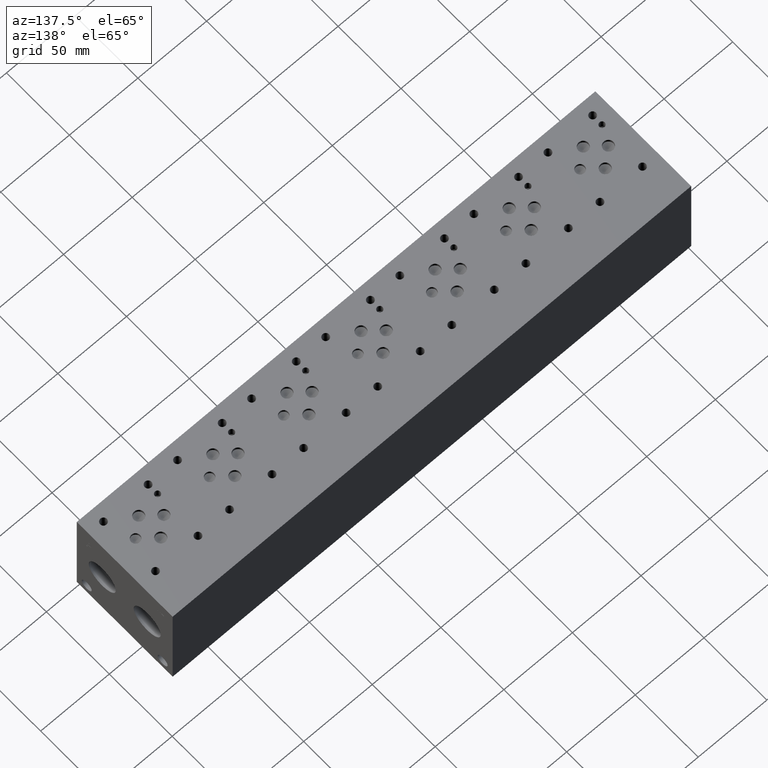
[diagram: clean part render]
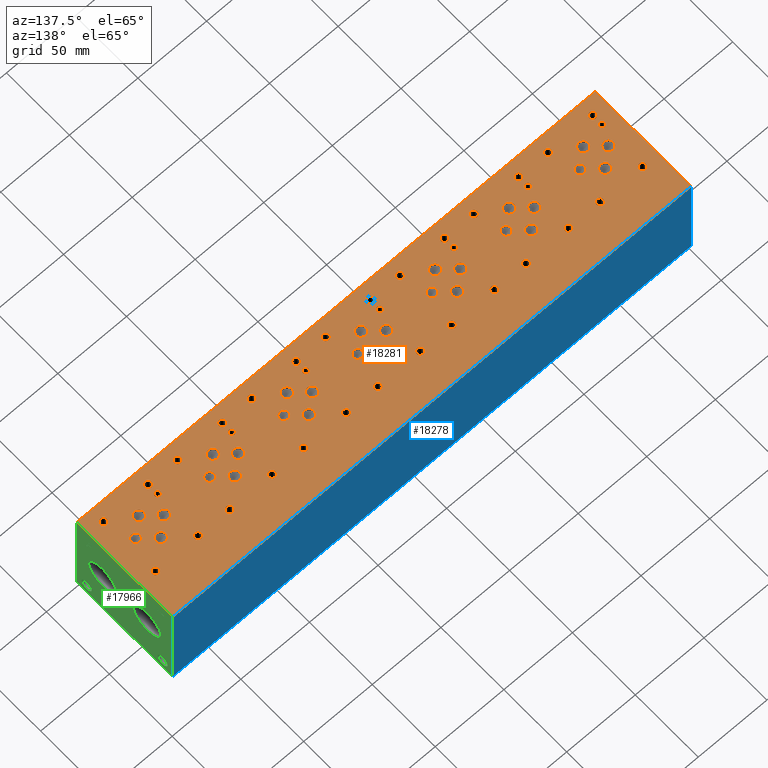
[diagram: same view with three faces highlighted in distinct colors, each labeled with its STEP entity id]
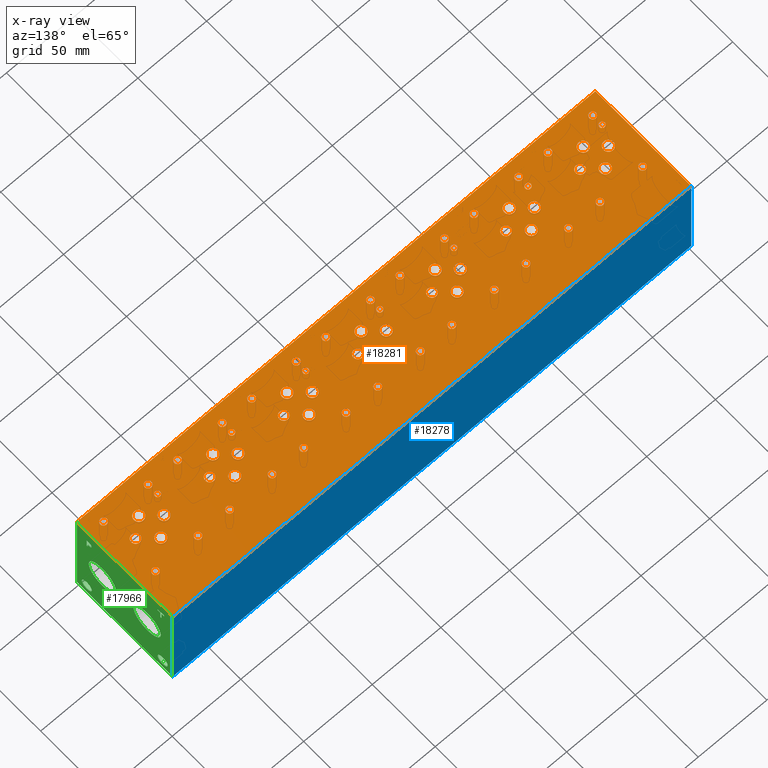
[diagram: x-ray of the same camera — body ghosted, the three highlighted faces saturated]
A machine part, auxiliary view with three faces highlighted in distinct colors.
The next image is the same camera in x-ray (body ghosted, the three faces saturated) — at least one of them is partly hidden behind the body in this view.
Their STEP definitions:

[orange] entity #18281 — the highlighted planar face has unit normal (0, 0, 1).
#400=CIRCLE('',#19005,1.9812);
#401=CIRCLE('',#19006,1.9812);
#404=CIRCLE('',#19011,1.9812);
#405=CIRCLE('',#19012,1.9812);
#408=CIRCLE('',#19017,1.9812);
#409=CIRCLE('',#19018,1.9812);
#412=CIRCLE('',#19023,1.9812);
#413=CIRCLE('',#19024,1.9812);
#416=CIRCLE('',#19029,1.9812);
#417=CIRCLE('',#19030,1.9812);
#420=CIRCLE('',#19035,1.9812);
#421=CIRCLE('',#19036,1.9812);
#424=CIRCLE('',#19041,3.175);
#425=CIRCLE('',#19042,3.175);
#428=CIRCLE('',#19047,3.175);
#429=CIRCLE('',#19048,3.175);
#432=CIRCLE('',#19053,3.175);
#433=CIRCLE('',#19054,3.175);
#436=CIRCLE('',#19059,3.175);
#437=CIRCLE('',#19060,3.175);
#440=CIRCLE('',#19065,3.175);
#441=CIRCLE('',#19066,3.175);
#444=CIRCLE('',#19071,3.175);
#445=CIRCLE('',#19072,3.175);
#448=CIRCLE('',#19077,3.175);
#449=CIRCLE('',#19078,3.175);
#452=CIRCLE('',#19083,3.5687);
#453=CIRCLE('',#19084,3.5687);
#456=CIRCLE('',#19089,3.5687);
#457=CIRCLE('',#19090,3.5687);
#460=CIRCLE('',#19095,3.5687);
#461=CIRCLE('',#19096,3.5687);
#464=CIRCLE('',#19101,3.5687);
#465=CIRCLE('',#19102,3.5687);
#468=CIRCLE('',#19107,3.5687);
#469=CIRCLE('',#19108,3.5687);
#472=CIRCLE('',#19113,3.5687);
#473=CIRCLE('',#19114,3.5687);
#476=CIRCLE('',#19119,3.5687);
#477=CIRCLE('',#19120,3.5687);
#480=CIRCLE('',#19125,3.5687);
#481=CIRCLE('',#19126,3.5687);
#484=CIRCLE('',#19131,3.5687);
#485=CIRCLE('',#19132,3.5687);
#488=CIRCLE('',#19137,3.5687);
#489=CIRCLE('',#19138,3.5687);
#492=CIRCLE('',#19143,3.5687);
#493=CIRCLE('',#19144,3.5687);
#496=CIRCLE('',#19149,3.5687);
#497=CIRCLE('',#19150,3.5687);
#500=CIRCLE('',#19155,3.5687);
#501=CIRCLE('',#19156,3.5687);
#504=CIRCLE('',#19161,3.5687);
#505=CIRCLE('',#19162,3.5687);
#508=CIRCLE('',#19167,3.5687);
#509=CIRCLE('',#19168,3.5687);
#512=CIRCLE('',#19173,3.5687);
#513=CIRCLE('',#19174,3.5687);
#516=CIRCLE('',#19179,3.5687);
#517=CIRCLE('',#19180,3.5687);
#520=CIRCLE('',#19185,3.5687);
#521=CIRCLE('',#19186,3.5687);
#524=CIRCLE('',#19191,3.5687);
#525=CIRCLE('',#19192,3.5687);
#528=CIRCLE('',#19197,3.5687);
#529=CIRCLE('',#19198,3.5687);
#532=CIRCLE('',#19203,3.5687);
#533=CIRCLE('',#19204,3.5687);
#536=CIRCLE('',#19209,1.9812);
#537=CIRCLE('',#19210,1.9812);
#543=CIRCLE('',#19219,2.413);
#544=CIRCLE('',#19220,2.413);
#550=CIRCLE('',#19230,2.413);
#551=CIRCLE('',#19231,2.413);
#557=CIRCLE('',#19241,2.413);
#558=CIRCLE('',#19242,2.413);
#564=CIRCLE('',#19252,2.413);
#565=CIRCLE('',#19253,2.413);
#571=CIRCLE('',#19263,2.413);
#572=CIRCLE('',#19264,2.413);
#578=CIRCLE('',#19274,2.413);
#579=CIRCLE('',#19275,2.413);
#585=CIRCLE('',#19285,2.413);
#586=CIRCLE('',#19286,2.413);
#592=CIRCLE('',#19296,2.413);
#593=CIRCLE('',#19297,2.413);
#599=CIRCLE('',#19307,2.413);
#600=CIRCLE('',#19308,2.413);
#606=CIRCLE('',#19318,2.413);
#607=CIRCLE('',#19319,2.413);
#613=CIRCLE('',#19329,2.413);
#614=CIRCLE('',#19330,2.413);
#620=CIRCLE('',#19340,2.413);
#621=CIRCLE('',#19341,2.413);
#627=CIRCLE('',#19351,2.413);
#628=CIRCLE('',#19352,2.413);
#634=CIRCLE('',#19362,2.413);
#635=CIRCLE('',#19363,2.413);
#641=CIRCLE('',#19373,2.413);
#642=CIRCLE('',#19374,2.413);
#648=CIRCLE('',#19384,2.413);
#649=CIRCLE('',#19385,2.413);
#655=CIRCLE('',#19395,2.413);
#656=CIRCLE('',#19396,2.413);
#662=CIRCLE('',#19406,2.413);
#663=CIRCLE('',#19407,2.413);
#669=CIRCLE('',#19417,2.413);
#670=CIRCLE('',#19418,2.413);
#676=CIRCLE('',#19428,2.413);
#677=CIRCLE('',#19429,2.413);
#683=CIRCLE('',#19439,2.413);
#684=CIRCLE('',#19440,2.413);
#690=CIRCLE('',#19450,2.413);
#691=CIRCLE('',#19451,2.413);
#697=CIRCLE('',#19461,2.413);
#698=CIRCLE('',#19462,2.413);
#704=CIRCLE('',#19472,2.413);
#705=CIRCLE('',#19473,2.413);
#711=CIRCLE('',#19483,2.413);
#712=CIRCLE('',#19484,2.413);
#718=CIRCLE('',#19494,2.413);
#719=CIRCLE('',#19495,2.413);
#725=CIRCLE('',#19505,2.413);
#726=CIRCLE('',#19506,2.413);
#732=CIRCLE('',#19516,2.413);
#733=CIRCLE('',#19517,2.413);
#878=FACE_BOUND('',#3482,.T.);
#879=FACE_BOUND('',#3483,.T.);
#880=FACE_BOUND('',#3484,.T.);
#881=FACE_BOUND('',#3485,.T.);
#882=FACE_BOUND('',#3486,.T.);
#883=FACE_BOUND('',#3487,.T.);
#884=FACE_BOUND('',#3488,.T.);
#885=FACE_BOUND('',#3489,.T.);
#886=FACE_BOUND('',#3490,.T.);
#887=FACE_BOUND('',#3491,.T.);
#888=FACE_BOUND('',#3492,.T.);
#889=FACE_BOUND('',#3493,.T.);
#890=FACE_BOUND('',#3494,.T.);
#891=FACE_BOUND('',#3495,.T.);
#892=FACE_BOUND('',#3496,.T.);
#893=FACE_BOUND('',#3497,.T.);
#894=FACE_BOUND('',#3498,.T.);
#895=FACE_BOUND('',#3499,.T.);
#896=FACE_BOUND('',#3500,.T.);
#897=FACE_BOUND('',#3501,.T.);
#898=FACE_BOUND('',#3502,.T.);
#899=FACE_BOUND('',#3503,.T.);
#900=FACE_BOUND('',#3504,.T.);
#901=FACE_BOUND('',#3505,.T.);
#902=FACE_BOUND('',#3506,.T.);
#903=FACE_BOUND('',#3507,.T.);
#904=FACE_BOUND('',#3508,.T.);
#905=FACE_BOUND('',#3509,.T.);
#906=FACE_BOUND('',#3510,.T.);
#907=FACE_BOUND('',#3511,.T.);
#908=FACE_BOUND('',#3512,.T.);
#909=FACE_BOUND('',#3513,.T.);
#910=FACE_BOUND('',#3514,.T.);
#911=FACE_BOUND('',#3515,.T.);
#912=FACE_BOUND('',#3516,.T.);
#913=FACE_BOUND('',#3517,.T.);
#914=FACE_BOUND('',#3518,.T.);
#915=FACE_BOUND('',#3519,.T.);
#916=FACE_BOUND('',#3520,.T.);
#917=FACE_BOUND('',#3521,.T.);
#918=FACE_BOUND('',#3522,.T.);
#919=FACE_BOUND('',#3523,.T.);
#920=FACE_BOUND('',#3524,.T.);
#921=FACE_BOUND('',#3525,.T.);
#922=FACE_BOUND('',#3526,.T.);
#923=FACE_BOUND('',#3527,.T.);
#924=FACE_BOUND('',#3528,.T.);
#925=FACE_BOUND('',#3529,.T.);
#926=FACE_BOUND('',#3530,.T.);
#927=FACE_BOUND('',#3531,.T.);
#928=FACE_BOUND('',#3532,.T.);
#929=FACE_BOUND('',#3533,.T.);
#930=FACE_BOUND('',#3534,.T.);
#931=FACE_BOUND('',#3535,.T.);
#932=FACE_BOUND('',#3536,.T.);
#933=FACE_BOUND('',#3537,.T.);
#934=FACE_BOUND('',#3538,.T.);
#935=FACE_BOUND('',#3539,.T.);
#936=FACE_BOUND('',#3540,.T.);
#937=FACE_BOUND('',#3541,.T.);
#938=FACE_BOUND('',#3542,.T.);
#939=FACE_BOUND('',#3543,.T.);
#940=FACE_BOUND('',#3544,.T.);
#1447=PLANE('',#19523);
#2392=FACE_OUTER_BOUND('',#3481,.T.);
#3481=EDGE_LOOP('',(#16356,#16357,#16358,#16359));
#3482=EDGE_LOOP('',(#16360,#16361));
#3483=EDGE_LOOP('',(#16362,#16363));
#3484=EDGE_LOOP('',(#16364,#16365));
#3485=EDGE_LOOP('',(#16366,#16367));
#3486=EDGE_LOOP('',(#16368,#16369));
#3487=EDGE_LOOP('',(#16370,#16371));
#3488=EDGE_LOOP('',(#16372,#16373));
#3489=EDGE_LOOP('',(#16374,#16375));
#3490=EDGE_LOOP('',(#16376,#16377));
#3491=EDGE_LOOP('',(#16378,#16379));
#3492=EDGE_LOOP('',(#16380,#16381));
#3493=EDGE_LOOP('',(#16382,#16383));
#3494=EDGE_LOOP('',(#16384,#16385));
#3495=EDGE_LOOP('',(#16386,#16387));
#3496=EDGE_LOOP('',(#16388,#16389));
#3497=EDGE_LOOP('',(#16390,#16391));
#3498=EDGE_LOOP('',(#16392,#16393));
#3499=EDGE_LOOP('',(#16394,#16395));
#3500=EDGE_LOOP('',(#16396,#16397));
#3501=EDGE_LOOP('',(#16398,#16399));
#3502=EDGE_LOOP('',(#16400,#16401));
#3503=EDGE_LOOP('',(#16402,#16403));
#3504=EDGE_LOOP('',(#16404,#16405));
#3505=EDGE_LOOP('',(#16406,#16407));
#3506=EDGE_LOOP('',(#16408,#16409));
#3507=EDGE_LOOP('',(#16410,#16411));
#3508=EDGE_LOOP('',(#16412,#16413));
#3509=EDGE_LOOP('',(#16414,#16415));
#3510=EDGE_LOOP('',(#16416,#16417));
#3511=EDGE_LOOP('',(#16418,#16419));
#3512=EDGE_LOOP('',(#16420,#16421));
#3513=EDGE_LOOP('',(#16422,#16423));
#3514=EDGE_LOOP('',(#16424,#16425));
#3515=EDGE_LOOP('',(#16426,#16427));
#3516=EDGE_LOOP('',(#16428,#16429));
#3517=EDGE_LOOP('',(#16430,#16431));
#3518=EDGE_LOOP('',(#16432,#16433));
#3519=EDGE_LOOP('',(#16434,#16435));
#3520=EDGE_LOOP('',(#16436,#16437));
#3521=EDGE_LOOP('',(#16438,#16439));
#3522=EDGE_LOOP('',(#16440,#16441));
#3523=EDGE_LOOP('',(#16442,#16443));
#3524=EDGE_LOOP('',(#16444,#16445));
#3525=EDGE_LOOP('',(#16446,#16447));
#3526=EDGE_LOOP('',(#16448,#16449));
#3527=EDGE_LOOP('',(#16450,#16451));
#3528=EDGE_LOOP('',(#16452,#16453));
#3529=EDGE_LOOP('',(#16454,#16455));
#3530=EDGE_LOOP('',(#16456,#16457));
#3531=EDGE_LOOP('',(#16458,#16459));
#3532=EDGE_LOOP('',(#16460,#16461));
#3533=EDGE_LOOP('',(#16462,#16463));
#3534=EDGE_LOOP('',(#16464,#16465));
#3535=EDGE_LOOP('',(#16466,#16467));
#3536=EDGE_LOOP('',(#16468,#16469));
#3537=EDGE_LOOP('',(#16470,#16471));
#3538=EDGE_LOOP('',(#16472,#16473));
#3539=EDGE_LOOP('',(#16474,#16475));
#3540=EDGE_LOOP('',(#16476,#16477));
#3541=EDGE_LOOP('',(#16478,#16479));
#3542=EDGE_LOOP('',(#16480,#16481));
#3543=EDGE_LOOP('',(#16482,#16483));
#3544=EDGE_LOOP('',(#16484,#16485));
#3592=LINE('',#23910,#5184);
#4829=LINE('',#29770,#6421);
#4887=LINE('',#30041,#6479);
#5137=LINE('',#31596,#6729);
#5184=VECTOR('',#19597,10.);
#6421=VECTOR('',#21716,10.);
#6479=VECTOR('',#21828,10.);
#6729=VECTOR('',#23566,10.);
#7208=VERTEX_POINT('',#23907);
#7209=VERTEX_POINT('',#23909);
#8319=VERTEX_POINT('',#29768);
#8377=VERTEX_POINT('',#30040);
#8543=VERTEX_POINT('',#30530);
#8544=VERTEX_POINT('',#30531);
#8548=VERTEX_POINT('',#30543);
#8549=VERTEX_POINT('',#30544);
#8553=VERTEX_POINT('',#30556);
#8554=VERTEX_POINT('',#30557);
#8558=VERTEX_POINT('',#30569);
#8559=VERTEX_POINT('',#30570);
#8563=VERTEX_POINT('',#30582);
#8564=VERTEX_POINT('',#30583);
#8568=VERTEX_POINT('',#30595);
#8569=VERTEX_POINT('',#30596);
#8573=VERTEX_POINT('',#30608);
#8574=VERTEX_POINT('',#30609);
#8578=VERTEX_POINT('',#30621);
#8579=VERTEX_POINT('',#30622);
#8583=VERTEX_POINT('',#30634);
#8584=VERTEX_POINT('',#30635);
#8588=VERTEX_POINT('',#30647);
#8589=VERTEX_POINT('',#30648);
#8593=VERTEX_POINT('',#30660);
#8594=VERTEX_POINT('',#30661);
#8598=VERTEX_POINT('',#30673);
#8599=VERTEX_POINT('',#30674);
#8603=VERTEX_POINT('',#30686);
#8604=VERTEX_POINT('',#30687);
#8608=VERTEX_POINT('',#30699);
#8609=VERTEX_POINT('',#30700);
#8613=VERTEX_POINT('',#30712);
#8614=VERTEX_POINT('',#30713);
#8618=VERTEX_POINT('',#30725);
#8619=VERTEX_POINT('',#30726);
#8623=VERTEX_POINT('',#30738);
#8624=VERTEX_POINT('',#30739);
#8628=VERTEX_POINT('',#30751);
#8629=VERTEX_POINT('',#30752);
#8633=VERTEX_POINT('',#30764);
#8634=VERTEX_POINT('',#30765);
#8638=VERTEX_POINT('',#30777);
#8639=VERTEX_POINT('',#30778);
#8643=VERTEX_POINT('',#30790);
#8644=VERTEX_POINT('',#30791);
#8648=VERTEX_POINT('',#30803);
#8649=VERTEX_POINT('',#30804);
#8653=VERTEX_POINT('',#30816);
#8654=VERTEX_POINT('',#30817);
#8658=VERTEX_POINT('',#30829);
#8659=VERTEX_POINT('',#30830);
#8663=VERTEX_POINT('',#30842);
#8664=VERTEX_POINT('',#30843);
#8668=VERTEX_POINT('',#30855);
#8669=VERTEX_POINT('',#30856);
#8673=VERTEX_POINT('',#30868);
#8674=VERTEX_POINT('',#30869);
#8678=VERTEX_POINT('',#30881);
#8679=VERTEX_POINT('',#30882);
#8683=VERTEX_POINT('',#30894);
#8684=VERTEX_POINT('',#30895);
#8688=VERTEX_POINT('',#30907);
#8689=VERTEX_POINT('',#30908);
#8693=VERTEX_POINT('',#30920);
#8694=VERTEX_POINT('',#30921);
#8698=VERTEX_POINT('',#30933);
#8699=VERTEX_POINT('',#30934);
#8703=VERTEX_POINT('',#30946);
#8704=VERTEX_POINT('',#30947);
#8708=VERTEX_POINT('',#30959);
#8709=VERTEX_POINT('',#30960);
#8713=VERTEX_POINT('',#30972);
#8714=VERTEX_POINT('',#30973);
#8721=VERTEX_POINT('',#30992);
#8722=VERTEX_POINT('',#30993);
#8729=VERTEX_POINT('',#31014);
#8730=VERTEX_POINT('',#31015);
#8737=VERTEX_POINT('',#31036);
#8738=VERTEX_POINT('',#31037);
#8745=VERTEX_POINT('',#31058);
#8746=VERTEX_POINT('',#31059);
#8753=VERTEX_POINT('',#31080);
#8754=VERTEX_POINT('',#31081);
#8761=VERTEX_POINT('',#31102);
#8762=VERTEX_POINT('',#31103);
#8769=VERTEX_POINT('',#31124);
#8770=VERTEX_POINT('',#31125);
#8777=VERTEX_POINT('',#31146);
#8778=VERTEX_POINT('',#31147);
#8785=VERTEX_POINT('',#31168);
#8786=VERTEX_POINT('',#31169);
#8793=VERTEX_POINT('',#31190);
#8794=VERTEX_POINT('',#31191);
#8801=VERTEX_POINT('',#31212);
#8802=VERTEX_POINT('',#31213);
#8809=VERTEX_POINT('',#31234);
#8810=VERTEX_POINT('',#31235);
#8817=VERTEX_POINT('',#31256);
#8818=VERTEX_POINT('',#31257);
#8825=VERTEX_POINT('',#31278);
#8826=VERTEX_POINT('',#31279);
#8833=VERTEX_POINT('',#31300);
#8834=VERTEX_POINT('',#31301);
#8841=VERTEX_POINT('',#31322);
#8842=VERTEX_POINT('',#31323);
#8849=VERTEX_POINT('',#31344);
#8850=VERTEX_POINT('',#31345);
#8857=VERTEX_POINT('',#31366);
#8858=VERTEX_POINT('',#31367);
#8865=VERTEX_POINT('',#31388);
#8866=VERTEX_POINT('',#31389);
#8873=VERTEX_POINT('',#31410);
#8874=VERTEX_POINT('',#31411);
#8881=VERTEX_POINT('',#31432);
#8882=VERTEX_POINT('',#31433);
#8889=VERTEX_POINT('',#31454);
#8890=VERTEX_POINT('',#31455);
#8897=VERTEX_POINT('',#31476);
#8898=VERTEX_POINT('',#31477);
#8905=VERTEX_POINT('',#31498);
#8906=VERTEX_POINT('',#31499);
#8913=VERTEX_POINT('',#31520);
#8914=VERTEX_POINT('',#31521);
#8921=VERTEX_POINT('',#31542);
#8922=VERTEX_POINT('',#31543);
#8929=VERTEX_POINT('',#31564);
#8930=VERTEX_POINT('',#31565);
#8937=VERTEX_POINT('',#31586);
#8938=VERTEX_POINT('',#31587);
#9013=EDGE_CURVE('',#7209,#7208,#3592,.T.);
#10664=EDGE_CURVE('',#7208,#8319,#4829,.T.);
#10746=EDGE_CURVE('',#8377,#7209,#4887,.T.);
#10967=EDGE_CURVE('',#8543,#8544,#400,.T.);
#10968=EDGE_CURVE('',#8544,#8543,#401,.T.);
#10973=EDGE_CURVE('',#8548,#8549,#404,.T.);
#10974=EDGE_CURVE('',#8549,#8548,#405,.T.);
#10979=EDGE_CURVE('',#8553,#8554,#408,.T.);
#10980=EDGE_CURVE('',#8554,#8553,#409,.T.);
#10985=EDGE_CURVE('',#8558,#8559,#412,.T.);
#10986=EDGE_CURVE('',#8559,#8558,#413,.T.);
#10991=EDGE_CURVE('',#8563,#8564,#416,.T.);
#10992=EDGE_CURVE('',#8564,#8563,#417,.T.);
#10997=EDGE_CURVE('',#8568,#8569,#420,.T.);
#10998=EDGE_CURVE('',#8569,#8568,#421,.T.);
#11003=EDGE_CURVE('',#8573,#8574,#424,.T.);
#11004=EDGE_CURVE('',#8574,#8573,#425,.T.);
#11009=EDGE_CURVE('',#8578,#8579,#428,.T.);
#11010=EDGE_CURVE('',#8579,#8578,#429,.T.);
#11015=EDGE_CURVE('',#8583,#8584,#432,.T.);
#11016=EDGE_CURVE('',#8584,#8583,#433,.T.);
#11021=EDGE_CURVE('',#8588,#8589,#436,.T.);
#11022=EDGE_CURVE('',#8589,#8588,#437,.T.);
#11027=EDGE_CURVE('',#8593,#8594,#440,.T.);
#11028=EDGE_CURVE('',#8594,#8593,#441,.T.);
#11033=EDGE_CURVE('',#8598,#8599,#444,.T.);
#11034=EDGE_CURVE('',#8599,#8598,#445,.T.);
#11039=EDGE_CURVE('',#8603,#8604,#448,.T.);
#11040=EDGE_CURVE('',#8604,#8603,#449,.T.);
#11045=EDGE_CURVE('',#8608,#8609,#452,.T.);
#11046=EDGE_CURVE('',#8609,#8608,#453,.T.);
#11051=EDGE_CURVE('',#8613,#8614,#456,.T.);
#11052=EDGE_CURVE('',#8614,#8613,#457,.T.);
#11057=EDGE_CURVE('',#8618,#8619,#460,.T.);
#11058=EDGE_CURVE('',#8619,#8618,#461,.T.);
#11063=EDGE_CURVE('',#8623,#8624,#464,.T.);
#11064=EDGE_CURVE('',#8624,#8623,#465,.T.);
#11069=EDGE_CURVE('',#8628,#8629,#468,.T.);
#11070=EDGE_CURVE('',#8629,#8628,#469,.T.);
#11075=EDGE_CURVE('',#8633,#8634,#472,.T.);
#11076=EDGE_CURVE('',#8634,#8633,#473,.T.);
#11081=EDGE_CURVE('',#8638,#8639,#476,.T.);
#11082=EDGE_CURVE('',#8639,#8638,#477,.T.);
#11087=EDGE_CURVE('',#8643,#8644,#480,.T.);
#11088=EDGE_CURVE('',#8644,#8643,#481,.T.);
#11093=EDGE_CURVE('',#8648,#8649,#484,.T.);
#11094=EDGE_CURVE('',#8649,#8648,#485,.T.);
#11099=EDGE_CURVE('',#8653,#8654,#488,.T.);
#11100=EDGE_CURVE('',#8654,#8653,#489,.T.);
#11105=EDGE_CURVE('',#8658,#8659,#492,.T.);
#11106=EDGE_CURVE('',#8659,#8658,#493,.T.);
#11111=EDGE_CURVE('',#8663,#8664,#496,.T.);
#11112=EDGE_CURVE('',#8664,#8663,#497,.T.);
#11117=EDGE_CURVE('',#8668,#8669,#500,.T.);
#11118=EDGE_CURVE('',#8669,#8668,#501,.T.);
#11123=EDGE_CURVE('',#8673,#8674,#504,.T.);
#11124=EDGE_CURVE('',#8674,#8673,#505,.T.);
#11129=EDGE_CURVE('',#8678,#8679,#508,.T.);
#11130=EDGE_CURVE('',#8679,#8678,#509,.T.);
#11135=EDGE_CURVE('',#8683,#8684,#512,.T.);
#11136=EDGE_CURVE('',#8684,#8683,#513,.T.);
#11141=EDGE_CURVE('',#8688,#8689,#516,.T.);
#11142=EDGE_CURVE('',#8689,#8688,#517,.T.);
#11147=EDGE_CURVE('',#8693,#8694,#520,.T.);
#11148=EDGE_CURVE('',#8694,#8693,#521,.T.);
#11153=EDGE_CURVE('',#8698,#8699,#524,.T.);
#11154=EDGE_CURVE('',#8699,#8698,#525,.T.);
#11159=EDGE_CURVE('',#8703,#8704,#528,.T.);
#11160=EDGE_CURVE('',#8704,#8703,#529,.T.);
#11165=EDGE_CURVE('',#8708,#8709,#532,.T.);
#11166=EDGE_CURVE('',#8709,#8708,#533,.T.);
#11171=EDGE_CURVE('',#8713,#8714,#536,.T.);
#11172=EDGE_CURVE('',#8714,#8713,#537,.T.);
#11180=EDGE_CURVE('',#8721,#8722,#543,.T.);
#11181=EDGE_CURVE('',#8722,#8721,#544,.T.);
#11190=EDGE_CURVE('',#8729,#8730,#550,.T.);
#11191=EDGE_CURVE('',#8730,#8729,#551,.T.);
#11200=EDGE_CURVE('',#8737,#8738,#557,.T.);
#11201=EDGE_CURVE('',#8738,#8737,#558,.T.);
#11210=EDGE_CURVE('',#8745,#8746,#564,.T.);
#11211=EDGE_CURVE('',#8746,#8745,#565,.T.);
#11220=EDGE_CURVE('',#8753,#8754,#571,.T.);
#11221=EDGE_CURVE('',#8754,#8753,#572,.T.);
#11230=EDGE_CURVE('',#8761,#8762,#578,.T.);
#11231=EDGE_CURVE('',#8762,#8761,#579,.T.);
#11240=EDGE_CURVE('',#8769,#8770,#585,.T.);
#11241=EDGE_CURVE('',#8770,#8769,#586,.T.);
#11250=EDGE_CURVE('',#8777,#8778,#592,.T.);
#11251=EDGE_CURVE('',#8778,#8777,#593,.T.);
#11260=EDGE_CURVE('',#8785,#8786,#599,.T.);
#11261=EDGE_CURVE('',#8786,#8785,#600,.T.);
#11270=EDGE_CURVE('',#8793,#8794,#606,.T.);
#11271=EDGE_CURVE('',#8794,#8793,#607,.T.);
#11280=EDGE_CURVE('',#8801,#8802,#613,.T.);
#11281=EDGE_CURVE('',#8802,#8801,#614,.T.);
#11290=EDGE_CURVE('',#8809,#8810,#620,.T.);
#11291=EDGE_CURVE('',#8810,#8809,#621,.T.);
#11300=EDGE_CURVE('',#8817,#8818,#627,.T.);
#11301=EDGE_CURVE('',#8818,#8817,#628,.T.);
#11310=EDGE_CURVE('',#8825,#8826,#634,.T.);
#11311=EDGE_CURVE('',#8826,#8825,#635,.T.);
#11320=EDGE_CURVE('',#8833,#8834,#641,.T.);
#11321=EDGE_CURVE('',#8834,#8833,#642,.T.);
#11330=EDGE_CURVE('',#8841,#8842,#648,.T.);
#11331=EDGE_CURVE('',#8842,#8841,#649,.T.);
#11340=EDGE_CURVE('',#8849,#8850,#655,.T.);
#11341=EDGE_CURVE('',#8850,#8849,#656,.T.);
#11350=EDGE_CURVE('',#8857,#8858,#662,.T.);
#11351=EDGE_CURVE('',#8858,#8857,#663,.T.);
#11360=EDGE_CURVE('',#8865,#8866,#669,.T.);
#11361=EDGE_CURVE('',#8866,#8865,#670,.T.);
#11370=EDGE_CURVE('',#8873,#8874,#676,.T.);
#11371=EDGE_CURVE('',#8874,#8873,#677,.T.);
#11380=EDGE_CURVE('',#8881,#8882,#683,.T.);
#11381=EDGE_CURVE('',#8882,#8881,#684,.T.);
#11390=EDGE_CURVE('',#8889,#8890,#690,.T.);
#11391=EDGE_CURVE('',#8890,#8889,#691,.T.);
#11400=EDGE_CURVE('',#8897,#8898,#697,.T.);
#11401=EDGE_CURVE('',#8898,#8897,#698,.T.);
#11410=EDGE_CURVE('',#8905,#8906,#704,.T.);
#11411=EDGE_CURVE('',#8906,#8905,#705,.T.);
#11420=EDGE_CURVE('',#8913,#8914,#711,.T.);
#11421=EDGE_CURVE('',#8914,#8913,#712,.T.);
#11430=EDGE_CURVE('',#8921,#8922,#718,.T.);
#11431=EDGE_CURVE('',#8922,#8921,#719,.T.);
#11440=EDGE_CURVE('',#8929,#8930,#725,.T.);
#11441=EDGE_CURVE('',#8930,#8929,#726,.T.);
#11450=EDGE_CURVE('',#8937,#8938,#732,.T.);
#11451=EDGE_CURVE('',#8938,#8937,#733,.T.);
#11455=EDGE_CURVE('',#8319,#8377,#5137,.T.);
#16356=ORIENTED_EDGE('',*,*,#9013,.T.);
#16357=ORIENTED_EDGE('',*,*,#10664,.T.);
#16358=ORIENTED_EDGE('',*,*,#11455,.T.);
#16359=ORIENTED_EDGE('',*,*,#10746,.T.);
#16360=ORIENTED_EDGE('',*,*,#10967,.T.);
#16361=ORIENTED_EDGE('',*,*,#10968,.T.);
#16362=ORIENTED_EDGE('',*,*,#10973,.T.);
#16363=ORIENTED_EDGE('',*,*,#10974,.T.);
#16364=ORIENTED_EDGE('',*,*,#10979,.T.);
#16365=ORIENTED_EDGE('',*,*,#10980,.T.);
#16366=ORIENTED_EDGE('',*,*,#10985,.T.);
#16367=ORIENTED_EDGE('',*,*,#10986,.T.);
#16368=ORIENTED_EDGE('',*,*,#10991,.T.);
#16369=ORIENTED_EDGE('',*,*,#10992,.T.);
#16370=ORIENTED_EDGE('',*,*,#10997,.T.);
#16371=ORIENTED_EDGE('',*,*,#10998,.T.);
#16372=ORIENTED_EDGE('',*,*,#11003,.T.);
#16373=ORIENTED_EDGE('',*,*,#11004,.T.);
#16374=ORIENTED_EDGE('',*,*,#11009,.T.);
#16375=ORIENTED_EDGE('',*,*,#11010,.T.);
#16376=ORIENTED_EDGE('',*,*,#11015,.T.);
#16377=ORIENTED_EDGE('',*,*,#11016,.T.);
#16378=ORIENTED_EDGE('',*,*,#11021,.T.);
#16379=ORIENTED_EDGE('',*,*,#11022,.T.);
#16380=ORIENTED_EDGE('',*,*,#11027,.T.);
#16381=ORIENTED_EDGE('',*,*,#11028,.T.);
#16382=ORIENTED_EDGE('',*,*,#11033,.T.);
#16383=ORIENTED_EDGE('',*,*,#11034,.T.);
#16384=ORIENTED_EDGE('',*,*,#11039,.T.);
#16385=ORIENTED_EDGE('',*,*,#11040,.T.);
#16386=ORIENTED_EDGE('',*,*,#11045,.T.);
#16387=ORIENTED_EDGE('',*,*,#11046,.T.);
#16388=ORIENTED_EDGE('',*,*,#11051,.T.);
#16389=ORIENTED_EDGE('',*,*,#11052,.T.);
#16390=ORIENTED_EDGE('',*,*,#11057,.T.);
#16391=ORIENTED_EDGE('',*,*,#11058,.T.);
#16392=ORIENTED_EDGE('',*,*,#11063,.T.);
#16393=ORIENTED_EDGE('',*,*,#11064,.T.);
#16394=ORIENTED_EDGE('',*,*,#11069,.T.);
#16395=ORIENTED_EDGE('',*,*,#11070,.T.);
#16396=ORIENTED_EDGE('',*,*,#11075,.T.);
#16397=ORIENTED_EDGE('',*,*,#11076,.T.);
#16398=ORIENTED_EDGE('',*,*,#11081,.T.);
#16399=ORIENTED_EDGE('',*,*,#11082,.T.);
#16400=ORIENTED_EDGE('',*,*,#11087,.T.);
#16401=ORIENTED_EDGE('',*,*,#11088,.T.);
#16402=ORIENTED_EDGE('',*,*,#11093,.T.);
#16403=ORIENTED_EDGE('',*,*,#11094,.T.);
#16404=ORIENTED_EDGE('',*,*,#11099,.T.);
#16405=ORIENTED_EDGE('',*,*,#11100,.T.);
#16406=ORIENTED_EDGE('',*,*,#11105,.T.);
#16407=ORIENTED_EDGE('',*,*,#11106,.T.);
#16408=ORIENTED_EDGE('',*,*,#11111,.T.);
#16409=ORIENTED_EDGE('',*,*,#11112,.T.);
#16410=ORIENTED_EDGE('',*,*,#11117,.T.);
#16411=ORIENTED_EDGE('',*,*,#11118,.T.);
#16412=ORIENTED_EDGE('',*,*,#11123,.T.);
#16413=ORIENTED_EDGE('',*,*,#11124,.T.);
#16414=ORIENTED_EDGE('',*,*,#11129,.T.);
#16415=ORIENTED_EDGE('',*,*,#11130,.T.);
#16416=ORIENTED_EDGE('',*,*,#11135,.T.);
#16417=ORIENTED_EDGE('',*,*,#11136,.T.);
#16418=ORIENTED_EDGE('',*,*,#11141,.T.);
#16419=ORIENTED_EDGE('',*,*,#11142,.T.);
#16420=ORIENTED_EDGE('',*,*,#11147,.T.);
#16421=ORIENTED_EDGE('',*,*,#11148,.T.);
#16422=ORIENTED_EDGE('',*,*,#11153,.T.);
#16423=ORIENTED_EDGE('',*,*,#11154,.T.);
#16424=ORIENTED_EDGE('',*,*,#11159,.T.);
#16425=ORIENTED_EDGE('',*,*,#11160,.T.);
#16426=ORIENTED_EDGE('',*,*,#11165,.T.);
#16427=ORIENTED_EDGE('',*,*,#11166,.T.);
#16428=ORIENTED_EDGE('',*,*,#11171,.T.);
#16429=ORIENTED_EDGE('',*,*,#11172,.T.);
#16430=ORIENTED_EDGE('',*,*,#11180,.T.);
#16431=ORIENTED_EDGE('',*,*,#11181,.T.);
#16432=ORIENTED_EDGE('',*,*,#11190,.T.);
#16433=ORIENTED_EDGE('',*,*,#11191,.T.);
#16434=ORIENTED_EDGE('',*,*,#11200,.T.);
#16435=ORIENTED_EDGE('',*,*,#11201,.T.);
#16436=ORIENTED_EDGE('',*,*,#11210,.T.);
#16437=ORIENTED_EDGE('',*,*,#11211,.T.);
#16438=ORIENTED_EDGE('',*,*,#11220,.T.);
#16439=ORIENTED_EDGE('',*,*,#11221,.T.);
#16440=ORIENTED_EDGE('',*,*,#11230,.T.);
#16441=ORIENTED_EDGE('',*,*,#11231,.T.);
#16442=ORIENTED_EDGE('',*,*,#11240,.T.);
#16443=ORIENTED_EDGE('',*,*,#11241,.T.);
#16444=ORIENTED_EDGE('',*,*,#11250,.T.);
#16445=ORIENTED_EDGE('',*,*,#11251,.T.);
#16446=ORIENTED_EDGE('',*,*,#11260,.T.);
#16447=ORIENTED_EDGE('',*,*,#11261,.T.);
#16448=ORIENTED_EDGE('',*,*,#11270,.T.);
#16449=ORIENTED_EDGE('',*,*,#11271,.T.);
#16450=ORIENTED_EDGE('',*,*,#11280,.T.);
#16451=ORIENTED_EDGE('',*,*,#11281,.T.);
#16452=ORIENTED_EDGE('',*,*,#11290,.T.);
#16453=ORIENTED_EDGE('',*,*,#11291,.T.);
#16454=ORIENTED_EDGE('',*,*,#11300,.T.);
#16455=ORIENTED_EDGE('',*,*,#11301,.T.);
#16456=ORIENTED_EDGE('',*,*,#11310,.T.);
#16457=ORIENTED_EDGE('',*,*,#11311,.T.);
#16458=ORIENTED_EDGE('',*,*,#11320,.T.);
#16459=ORIENTED_EDGE('',*,*,#11321,.T.);
#16460=ORIENTED_EDGE('',*,*,#11330,.T.);
#16461=ORIENTED_EDGE('',*,*,#11331,.T.);
#16462=ORIENTED_EDGE('',*,*,#11340,.T.);
#16463=ORIENTED_EDGE('',*,*,#11341,.T.);
#16464=ORIENTED_EDGE('',*,*,#11350,.T.);
#16465=ORIENTED_EDGE('',*,*,#11351,.T.);
#16466=ORIENTED_EDGE('',*,*,#11360,.T.);
#16467=ORIENTED_EDGE('',*,*,#11361,.T.);
#16468=ORIENTED_EDGE('',*,*,#11370,.T.);
#16469=ORIENTED_EDGE('',*,*,#11371,.T.);
#16470=ORIENTED_EDGE('',*,*,#11380,.T.);
#16471=ORIENTED_EDGE('',*,*,#11381,.T.);
#16472=ORIENTED_EDGE('',*,*,#11390,.T.);
#16473=ORIENTED_EDGE('',*,*,#11391,.T.);
#16474=ORIENTED_EDGE('',*,*,#11400,.T.);
#16475=ORIENTED_EDGE('',*,*,#11401,.T.);
#16476=ORIENTED_EDGE('',*,*,#11410,.T.);
#16477=ORIENTED_EDGE('',*,*,#11411,.T.);
#16478=ORIENTED_EDGE('',*,*,#11420,.T.);
#16479=ORIENTED_EDGE('',*,*,#11421,.T.);
#16480=ORIENTED_EDGE('',*,*,#11430,.T.);
#16481=ORIENTED_EDGE('',*,*,#11431,.T.);
#16482=ORIENTED_EDGE('',*,*,#11440,.T.);
#16483=ORIENTED_EDGE('',*,*,#11441,.T.);
#16484=ORIENTED_EDGE('',*,*,#11450,.T.);
#16485=ORIENTED_EDGE('',*,*,#11451,.T.);
#18281=ADVANCED_FACE('',(#2392,#878,#879,#880,#881,#882,#883,#884,#885,
#886,#887,#888,#889,#890,#891,#892,#893,#894,#895,#896,#897,#898,#899,#900,
#901,#902,#903,#904,#905,#906,#907,#908,#909,#910,#911,#912,#913,#914,#915,
#916,#917,#918,#919,#920,#921,#922,#923,#924,#925,#926,#927,#928,#929,#930,
#931,#932,#933,#934,#935,#936,#937,#938,#939,#940),#1447,.T.);
#19005=AXIS2_PLACEMENT_3D('',#30532,#22380,#22381);
#19006=AXIS2_PLACEMENT_3D('',#30533,#22382,#22383);
#19011=AXIS2_PLACEMENT_3D('',#30545,#22394,#22395);
#19012=AXIS2_PLACEMENT_3D('',#30546,#22396,#22397);
#19017=AXIS2_PLACEMENT_3D('',#30558,#22408,#22409);
#19018=AXIS2_PLACEMENT_3D('',#30559,#22410,#22411);
#19023=AXIS2_PLACEMENT_3D('',#30571,#22422,#22423);
#19024=AXIS2_PLACEMENT_3D('',#30572,#22424,#22425);
#19029=AXIS2_PLACEMENT_3D('',#30584,#22436,#22437);
#19030=AXIS2_PLACEMENT_3D('',#30585,#22438,#22439);
#19035=AXIS2_PLACEMENT_3D('',#30597,#22450,#22451);
#19036=AXIS2_PLACEMENT_3D('',#30598,#22452,#22453);
#19041=AXIS2_PLACEMENT_3D('',#30610,#22464,#22465);
#19042=AXIS2_PLACEMENT_3D('',#30611,#22466,#22467);
#19047=AXIS2_PLACEMENT_3D('',#30623,#22478,#22479);
#19048=AXIS2_PLACEMENT_3D('',#30624,#22480,#22481);
#19053=AXIS2_PLACEMENT_3D('',#30636,#22492,#22493);
#19054=AXIS2_PLACEMENT_3D('',#30637,#22494,#22495);
#19059=AXIS2_PLACEMENT_3D('',#30649,#22506,#22507);
#19060=AXIS2_PLACEMENT_3D('',#30650,#22508,#22509);
#19065=AXIS2_PLACEMENT_3D('',#30662,#22520,#22521);
#19066=AXIS2_PLACEMENT_3D('',#30663,#22522,#22523);
#19071=AXIS2_PLACEMENT_3D('',#30675,#22534,#22535);
#19072=AXIS2_PLACEMENT_3D('',#30676,#22536,#22537);
#19077=AXIS2_PLACEMENT_3D('',#30688,#22548,#22549);
#19078=AXIS2_PLACEMENT_3D('',#30689,#22550,#22551);
#19083=AXIS2_PLACEMENT_3D('',#30701,#22562,#22563);
#19084=AXIS2_PLACEMENT_3D('',#30702,#22564,#22565);
#19089=AXIS2_PLACEMENT_3D('',#30714,#22576,#22577);
#19090=AXIS2_PLACEMENT_3D('',#30715,#22578,#22579);
#19095=AXIS2_PLACEMENT_3D('',#30727,#22590,#22591);
#19096=AXIS2_PLACEMENT_3D('',#30728,#22592,#22593);
#19101=AXIS2_PLACEMENT_3D('',#30740,#22604,#22605);
#19102=AXIS2_PLACEMENT_3D('',#30741,#22606,#22607);
#19107=AXIS2_PLACEMENT_3D('',#30753,#22618,#22619);
#19108=AXIS2_PLACEMENT_3D('',#30754,#22620,#22621);
#19113=AXIS2_PLACEMENT_3D('',#30766,#22632,#22633);
#19114=AXIS2_PLACEMENT_3D('',#30767,#22634,#22635);
#19119=AXIS2_PLACEMENT_3D('',#30779,#22646,#22647);
#19120=AXIS2_PLACEMENT_3D('',#30780,#22648,#22649);
#19125=AXIS2_PLACEMENT_3D('',#30792,#22660,#22661);
#19126=AXIS2_PLACEMENT_3D('',#30793,#22662,#22663);
#19131=AXIS2_PLACEMENT_3D('',#30805,#22674,#22675);
#19132=AXIS2_PLACEMENT_3D('',#30806,#22676,#22677);
#19137=AXIS2_PLACEMENT_3D('',#30818,#22688,#22689);
#19138=AXIS2_PLACEMENT_3D('',#30819,#22690,#22691);
#19143=AXIS2_PLACEMENT_3D('',#30831,#22702,#22703);
#19144=AXIS2_PLACEMENT_3D('',#30832,#22704,#22705);
#19149=AXIS2_PLACEMENT_3D('',#30844,#22716,#22717);
#19150=AXIS2_PLACEMENT_3D('',#30845,#22718,#22719);
#19155=AXIS2_PLACEMENT_3D('',#30857,#22730,#22731);
#19156=AXIS2_PLACEMENT_3D('',#30858,#22732,#22733);
#19161=AXIS2_PLACEMENT_3D('',#30870,#22744,#22745);
#19162=AXIS2_PLACEMENT_3D('',#30871,#22746,#22747);
#19167=AXIS2_PLACEMENT_3D('',#30883,#22758,#22759);
#19168=AXIS2_PLACEMENT_3D('',#30884,#22760,#22761);
#19173=AXIS2_PLACEMENT_3D('',#30896,#22772,#22773);
#19174=AXIS2_PLACEMENT_3D('',#30897,#22774,#22775);
#19179=AXIS2_PLACEMENT_3D('',#30909,#22786,#22787);
#19180=AXIS2_PLACEMENT_3D('',#30910,#22788,#22789);
#19185=AXIS2_PLACEMENT_3D('',#30922,#22800,#22801);
#19186=AXIS2_PLACEMENT_3D('',#30923,#22802,#22803);
#19191=AXIS2_PLACEMENT_3D('',#30935,#22814,#22815);
#19192=AXIS2_PLACEMENT_3D('',#30936,#22816,#22817);
#19197=AXIS2_PLACEMENT_3D('',#30948,#22828,#22829);
#19198=AXIS2_PLACEMENT_3D('',#30949,#22830,#22831);
#19203=AXIS2_PLACEMENT_3D('',#30961,#22842,#22843);
#19204=AXIS2_PLACEMENT_3D('',#30962,#22844,#22845);
#19209=AXIS2_PLACEMENT_3D('',#30974,#22856,#22857);
#19210=AXIS2_PLACEMENT_3D('',#30975,#22858,#22859);
#19219=AXIS2_PLACEMENT_3D('',#30994,#22878,#22879);
#19220=AXIS2_PLACEMENT_3D('',#30995,#22880,#22881);
#19230=AXIS2_PLACEMENT_3D('',#31016,#22903,#22904);
#19231=AXIS2_PLACEMENT_3D('',#31017,#22905,#22906);
#19241=AXIS2_PLACEMENT_3D('',#31038,#22928,#22929);
#19242=AXIS2_PLACEMENT_3D('',#31039,#22930,#22931);
#19252=AXIS2_PLACEMENT_3D('',#31060,#22953,#22954);
#19253=AXIS2_PLACEMENT_3D('',#31061,#22955,#22956);
#19263=AXIS2_PLACEMENT_3D('',#31082,#22978,#22979);
#19264=AXIS2_PLACEMENT_3D('',#31083,#22980,#22981);
#19274=AXIS2_PLACEMENT_3D('',#31104,#23003,#23004);
#19275=AXIS2_PLACEMENT_3D('',#31105,#23005,#23006);
#19285=AXIS2_PLACEMENT_3D('',#31126,#23028,#23029);
#19286=AXIS2_PLACEMENT_3D('',#31127,#23030,#23031);
#19296=AXIS2_PLACEMENT_3D('',#31148,#23053,#23054);
#19297=AXIS2_PLACEMENT_3D('',#31149,#23055,#23056);
#19307=AXIS2_PLACEMENT_3D('',#31170,#23078,#23079);
#19308=AXIS2_PLACEMENT_3D('',#31171,#23080,#23081);
#19318=AXIS2_PLACEMENT_3D('',#31192,#23103,#23104);
#19319=AXIS2_PLACEMENT_3D('',#31193,#23105,#23106);
#19329=AXIS2_PLACEMENT_3D('',#31214,#23128,#23129);
#19330=AXIS2_PLACEMENT_3D('',#31215,#23130,#23131);
#19340=AXIS2_PLACEMENT_3D('',#31236,#23153,#23154);
#19341=AXIS2_PLACEMENT_3D('',#31237,#23155,#23156);
#19351=AXIS2_PLACEMENT_3D('',#31258,#23178,#23179);
#19352=AXIS2_PLACEMENT_3D('',#31259,#23180,#23181);
#19362=AXIS2_PLACEMENT_3D('',#31280,#23203,#23204);
#19363=AXIS2_PLACEMENT_3D('',#31281,#23205,#23206);
#19373=AXIS2_PLACEMENT_3D('',#31302,#23228,#23229);
#19374=AXIS2_PLACEMENT_3D('',#31303,#23230,#23231);
#19384=AXIS2_PLACEMENT_3D('',#31324,#23253,#23254);
#19385=AXIS2_PLACEMENT_3D('',#31325,#23255,#23256);
#19395=AXIS2_PLACEMENT_3D('',#31346,#23278,#23279);
#19396=AXIS2_PLACEMENT_3D('',#31347,#23280,#23281);
#19406=AXIS2_PLACEMENT_3D('',#31368,#23303,#23304);
#19407=AXIS2_PLACEMENT_3D('',#31369,#23305,#23306);
#19417=AXIS2_PLACEMENT_3D('',#31390,#23328,#23329);
#19418=AXIS2_PLACEMENT_3D('',#31391,#23330,#23331);
#19428=AXIS2_PLACEMENT_3D('',#31412,#23353,#23354);
#19429=AXIS2_PLACEMENT_3D('',#31413,#23355,#23356);
#19439=AXIS2_PLACEMENT_3D('',#31434,#23378,#23379);
#19440=AXIS2_PLACEMENT_3D('',#31435,#23380,#23381);
#19450=AXIS2_PLACEMENT_3D('',#31456,#23403,#23404);
#19451=AXIS2_PLACEMENT_3D('',#31457,#23405,#23406);
#19461=AXIS2_PLACEMENT_3D('',#31478,#23428,#23429);
#19462=AXIS2_PLACEMENT_3D('',#31479,#23430,#23431);
#19472=AXIS2_PLACEMENT_3D('',#31500,#23453,#23454);
#19473=AXIS2_PLACEMENT_3D('',#31501,#23455,#23456);
#19483=AXIS2_PLACEMENT_3D('',#31522,#23478,#23479);
#19484=AXIS2_PLACEMENT_3D('',#31523,#23480,#23481);
#19494=AXIS2_PLACEMENT_3D('',#31544,#23503,#23504);
#19495=AXIS2_PLACEMENT_3D('',#31545,#23505,#23506);
#19505=AXIS2_PLACEMENT_3D('',#31566,#23528,#23529);
#19506=AXIS2_PLACEMENT_3D('',#31567,#23530,#23531);
#19516=AXIS2_PLACEMENT_3D('',#31588,#23553,#23554);
#19517=AXIS2_PLACEMENT_3D('',#31589,#23555,#23556);
#19523=AXIS2_PLACEMENT_3D('',#31599,#23571,#23572);
#19597=DIRECTION('',(1.,0.,0.));
#21716=DIRECTION('',(0.,1.,0.));
#21828=DIRECTION('',(0.,-1.,0.));
#22380=DIRECTION('center_axis',(0.,0.,-1.));
#22381=DIRECTION('ref_axis',(1.,0.,0.));
#22382=DIRECTION('center_axis',(0.,0.,-1.));
#22383=DIRECTION('ref_axis',(1.,0.,0.));
#22394=DIRECTION('center_axis',(0.,0.,-1.));
#22395=DIRECTION('ref_axis',(1.,0.,0.));
#22396=DIRECTION('center_axis',(0.,0.,-1.));
#22397=DIRECTION('ref_axis',(1.,0.,0.));
#22408=DIRECTION('center_axis',(0.,0.,-1.));
#22409=DIRECTION('ref_axis',(1.,0.,0.));
#22410=DIRECTION('center_axis',(0.,0.,-1.));
#22411=DIRECTION('ref_axis',(1.,0.,0.));
#22422=DIRECTION('center_axis',(0.,0.,-1.));
#22423=DIRECTION('ref_axis',(1.,0.,0.));
#22424=DIRECTION('center_axis',(0.,0.,-1.));
#22425=DIRECTION('ref_axis',(1.,0.,0.));
#22436=DIRECTION('center_axis',(0.,0.,-1.));
#22437=DIRECTION('ref_axis',(1.,0.,0.));
#22438=DIRECTION('center_axis',(0.,0.,-1.));
#22439=DIRECTION('ref_axis',(1.,0.,0.));
#22450=DIRECTION('center_axis',(0.,0.,-1.));
#22451=DIRECTION('ref_axis',(1.,0.,0.));
#22452=DIRECTION('center_axis',(0.,0.,-1.));
#22453=DIRECTION('ref_axis',(1.,0.,0.));
#22464=DIRECTION('center_axis',(0.,0.,-1.));
#22465=DIRECTION('ref_axis',(1.,0.,0.));
#22466=DIRECTION('center_axis',(0.,0.,-1.));
#22467=DIRECTION('ref_axis',(1.,0.,0.));
#22478=DIRECTION('center_axis',(0.,0.,-1.));
#22479=DIRECTION('ref_axis',(1.,0.,0.));
#22480=DIRECTION('center_axis',(0.,0.,-1.));
#22481=DIRECTION('ref_axis',(1.,0.,0.));
#22492=DIRECTION('center_axis',(0.,0.,-1.));
#22493=DIRECTION('ref_axis',(1.,0.,0.));
#22494=DIRECTION('center_axis',(0.,0.,-1.));
#22495=DIRECTION('ref_axis',(1.,0.,0.));
#22506=DIRECTION('center_axis',(0.,0.,-1.));
#22507=DIRECTION('ref_axis',(1.,0.,0.));
#22508=DIRECTION('center_axis',(0.,0.,-1.));
#22509=DIRECTION('ref_axis',(1.,0.,0.));
#22520=DIRECTION('center_axis',(0.,0.,-1.));
#22521=DIRECTION('ref_axis',(1.,0.,0.));
#22522=DIRECTION('center_axis',(0.,0.,-1.));
#22523=DIRECTION('ref_axis',(1.,0.,0.));
#22534=DIRECTION('center_axis',(0.,0.,-1.));
#22535=DIRECTION('ref_axis',(1.,0.,0.));
#22536=DIRECTION('center_axis',(0.,0.,-1.));
#22537=DIRECTION('ref_axis',(1.,0.,0.));
#22548=DIRECTION('center_axis',(0.,0.,-1.));
#22549=DIRECTION('ref_axis',(1.,0.,0.));
#22550=DIRECTION('center_axis',(0.,0.,-1.));
#22551=DIRECTION('ref_axis',(1.,0.,0.));
#22562=DIRECTION('center_axis',(0.,0.,-1.));
#22563=DIRECTION('ref_axis',(1.,0.,0.));
#22564=DIRECTION('center_axis',(0.,0.,-1.));
#22565=DIRECTION('ref_axis',(1.,0.,0.));
#22576=DIRECTION('center_axis',(0.,0.,-1.));
#22577=DIRECTION('ref_axis',(1.,0.,0.));
#22578=DIRECTION('center_axis',(0.,0.,-1.));
#22579=DIRECTION('ref_axis',(1.,0.,0.));
#22590=DIRECTION('center_axis',(0.,0.,-1.));
#22591=DIRECTION('ref_axis',(1.,0.,0.));
#22592=DIRECTION('center_axis',(0.,0.,-1.));
#22593=DIRECTION('ref_axis',(1.,0.,0.));
#22604=DIRECTION('center_axis',(0.,0.,-1.));
#22605=DIRECTION('ref_axis',(1.,0.,0.));
#22606=DIRECTION('center_axis',(0.,0.,-1.));
#22607=DIRECTION('ref_axis',(1.,0.,0.));
#22618=DIRECTION('center_axis',(0.,0.,-1.));
#22619=DIRECTION('ref_axis',(1.,0.,0.));
#22620=DIRECTION('center_axis',(0.,0.,-1.));
#22621=DIRECTION('ref_axis',(1.,0.,0.));
#22632=DIRECTION('center_axis',(0.,0.,-1.));
#22633=DIRECTION('ref_axis',(1.,0.,0.));
#22634=DIRECTION('center_axis',(0.,0.,-1.));
#22635=DIRECTION('ref_axis',(1.,0.,0.));
#22646=DIRECTION('center_axis',(0.,0.,-1.));
#22647=DIRECTION('ref_axis',(1.,0.,0.));
#22648=DIRECTION('center_axis',(0.,0.,-1.));
#22649=DIRECTION('ref_axis',(1.,0.,0.));
#22660=DIRECTION('center_axis',(0.,0.,-1.));
#22661=DIRECTION('ref_axis',(1.,0.,0.));
#22662=DIRECTION('center_axis',(0.,0.,-1.));
#22663=DIRECTION('ref_axis',(1.,0.,0.));
#22674=DIRECTION('center_axis',(0.,0.,-1.));
#22675=DIRECTION('ref_axis',(1.,0.,0.));
#22676=DIRECTION('center_axis',(0.,0.,-1.));
#22677=DIRECTION('ref_axis',(1.,0.,0.));
#22688=DIRECTION('center_axis',(0.,0.,-1.));
#22689=DIRECTION('ref_axis',(1.,0.,0.));
#22690=DIRECTION('center_axis',(0.,0.,-1.));
#22691=DIRECTION('ref_axis',(1.,0.,0.));
#22702=DIRECTION('center_axis',(0.,0.,-1.));
#22703=DIRECTION('ref_axis',(1.,0.,0.));
#22704=DIRECTION('center_axis',(0.,0.,-1.));
#22705=DIRECTION('ref_axis',(1.,0.,0.));
#22716=DIRECTION('center_axis',(0.,0.,-1.));
#22717=DIRECTION('ref_axis',(1.,0.,0.));
#22718=DIRECTION('center_axis',(0.,0.,-1.));
#22719=DIRECTION('ref_axis',(1.,0.,0.));
#22730=DIRECTION('center_axis',(0.,0.,-1.));
#22731=DIRECTION('ref_axis',(1.,0.,0.));
#22732=DIRECTION('center_axis',(0.,0.,-1.));
#22733=DIRECTION('ref_axis',(1.,0.,0.));
#22744=DIRECTION('center_axis',(0.,0.,-1.));
#22745=DIRECTION('ref_axis',(1.,0.,0.));
#22746=DIRECTION('center_axis',(0.,0.,-1.));
#22747=DIRECTION('ref_axis',(1.,0.,0.));
#22758=DIRECTION('center_axis',(0.,0.,-1.));
#22759=DIRECTION('ref_axis',(1.,0.,0.));
#22760=DIRECTION('center_axis',(0.,0.,-1.));
#22761=DIRECTION('ref_axis',(1.,0.,0.));
#22772=DIRECTION('center_axis',(0.,0.,-1.));
#22773=DIRECTION('ref_axis',(1.,0.,0.));
#22774=DIRECTION('center_axis',(0.,0.,-1.));
#22775=DIRECTION('ref_axis',(1.,0.,0.));
#22786=DIRECTION('center_axis',(0.,0.,-1.));
#22787=DIRECTION('ref_axis',(1.,0.,0.));
#22788=DIRECTION('center_axis',(0.,0.,-1.));
#22789=DIRECTION('ref_axis',(1.,0.,0.));
#22800=DIRECTION('center_axis',(0.,0.,-1.));
#22801=DIRECTION('ref_axis',(1.,0.,0.));
#22802=DIRECTION('center_axis',(0.,0.,-1.));
#22803=DIRECTION('ref_axis',(1.,0.,0.));
#22814=DIRECTION('center_axis',(0.,0.,-1.));
#22815=DIRECTION('ref_axis',(1.,0.,0.));
#22816=DIRECTION('center_axis',(0.,0.,-1.));
#22817=DIRECTION('ref_axis',(1.,0.,0.));
#22828=DIRECTION('center_axis',(0.,0.,-1.));
#22829=DIRECTION('ref_axis',(1.,0.,0.));
#22830=DIRECTION('center_axis',(0.,0.,-1.));
#22831=DIRECTION('ref_axis',(1.,0.,0.));
#22842=DIRECTION('center_axis',(0.,0.,-1.));
#22843=DIRECTION('ref_axis',(1.,0.,0.));
#22844=DIRECTION('center_axis',(0.,0.,-1.));
#22845=DIRECTION('ref_axis',(1.,0.,0.));
#22856=DIRECTION('center_axis',(0.,0.,-1.));
#22857=DIRECTION('ref_axis',(1.,0.,0.));
#22858=DIRECTION('center_axis',(0.,0.,-1.));
#22859=DIRECTION('ref_axis',(1.,0.,0.));
#22878=DIRECTION('center_axis',(0.,0.,-1.));
#22879=DIRECTION('ref_axis',(1.,0.,0.));
#22880=DIRECTION('center_axis',(0.,0.,-1.));
#22881=DIRECTION('ref_axis',(1.,0.,0.));
#22903=DIRECTION('center_axis',(0.,0.,-1.));
#22904=DIRECTION('ref_axis',(1.,0.,0.));
#22905=DIRECTION('center_axis',(0.,0.,-1.));
#22906=DIRECTION('ref_axis',(1.,0.,0.));
#22928=DIRECTION('center_axis',(0.,0.,-1.));
#22929=DIRECTION('ref_axis',(1.,0.,0.));
#22930=DIRECTION('center_axis',(0.,0.,-1.));
#22931=DIRECTION('ref_axis',(1.,0.,0.));
#22953=DIRECTION('center_axis',(0.,0.,-1.));
#22954=DIRECTION('ref_axis',(1.,0.,0.));
#22955=DIRECTION('center_axis',(0.,0.,-1.));
#22956=DIRECTION('ref_axis',(1.,0.,0.));
#22978=DIRECTION('center_axis',(0.,0.,-1.));
#22979=DIRECTION('ref_axis',(1.,0.,0.));
#22980=DIRECTION('center_axis',(0.,0.,-1.));
#22981=DIRECTION('ref_axis',(1.,0.,0.));
#23003=DIRECTION('center_axis',(0.,0.,-1.));
#23004=DIRECTION('ref_axis',(1.,0.,0.));
#23005=DIRECTION('center_axis',(0.,0.,-1.));
#23006=DIRECTION('ref_axis',(1.,0.,0.));
#23028=DIRECTION('center_axis',(0.,0.,-1.));
#23029=DIRECTION('ref_axis',(1.,0.,0.));
#23030=DIRECTION('center_axis',(0.,0.,-1.));
#23031=DIRECTION('ref_axis',(1.,0.,0.));
#23053=DIRECTION('center_axis',(0.,0.,-1.));
#23054=DIRECTION('ref_axis',(1.,0.,0.));
#23055=DIRECTION('center_axis',(0.,0.,-1.));
#23056=DIRECTION('ref_axis',(1.,0.,0.));
#23078=DIRECTION('center_axis',(0.,0.,-1.));
#23079=DIRECTION('ref_axis',(1.,0.,0.));
#23080=DIRECTION('center_axis',(0.,0.,-1.));
#23081=DIRECTION('ref_axis',(1.,0.,0.));
#23103=DIRECTION('center_axis',(0.,0.,-1.));
#23104=DIRECTION('ref_axis',(1.,0.,0.));
#23105=DIRECTION('center_axis',(0.,0.,-1.));
#23106=DIRECTION('ref_axis',(1.,0.,0.));
#23128=DIRECTION('center_axis',(0.,0.,-1.));
#23129=DIRECTION('ref_axis',(1.,0.,0.));
#23130=DIRECTION('center_axis',(0.,0.,-1.));
#23131=DIRECTION('ref_axis',(1.,0.,0.));
#23153=DIRECTION('center_axis',(0.,0.,-1.));
#23154=DIRECTION('ref_axis',(1.,0.,0.));
#23155=DIRECTION('center_axis',(0.,0.,-1.));
#23156=DIRECTION('ref_axis',(1.,0.,0.));
#23178=DIRECTION('center_axis',(0.,0.,-1.));
#23179=DIRECTION('ref_axis',(1.,0.,0.));
#23180=DIRECTION('center_axis',(0.,0.,-1.));
#23181=DIRECTION('ref_axis',(1.,0.,0.));
#23203=DIRECTION('center_axis',(0.,0.,-1.));
#23204=DIRECTION('ref_axis',(1.,0.,0.));
#23205=DIRECTION('center_axis',(0.,0.,-1.));
#23206=DIRECTION('ref_axis',(1.,0.,0.));
#23228=DIRECTION('center_axis',(0.,0.,-1.));
#23229=DIRECTION('ref_axis',(1.,0.,0.));
#23230=DIRECTION('center_axis',(0.,0.,-1.));
#23231=DIRECTION('ref_axis',(1.,0.,0.));
#23253=DIRECTION('center_axis',(0.,0.,-1.));
#23254=DIRECTION('ref_axis',(1.,0.,0.));
#23255=DIRECTION('center_axis',(0.,0.,-1.));
#23256=DIRECTION('ref_axis',(1.,0.,0.));
#23278=DIRECTION('center_axis',(0.,0.,-1.));
#23279=DIRECTION('ref_axis',(1.,0.,0.));
#23280=DIRECTION('center_axis',(0.,0.,-1.));
#23281=DIRECTION('ref_axis',(1.,0.,0.));
#23303=DIRECTION('center_axis',(0.,0.,-1.));
#23304=DIRECTION('ref_axis',(1.,0.,0.));
#23305=DIRECTION('center_axis',(0.,0.,-1.));
#23306=DIRECTION('ref_axis',(1.,0.,0.));
#23328=DIRECTION('center_axis',(0.,0.,-1.));
#23329=DIRECTION('ref_axis',(1.,0.,0.));
#23330=DIRECTION('center_axis',(0.,0.,-1.));
#23331=DIRECTION('ref_axis',(1.,0.,0.));
#23353=DIRECTION('center_axis',(0.,0.,-1.));
#23354=DIRECTION('ref_axis',(1.,0.,0.));
#23355=DIRECTION('center_axis',(0.,0.,-1.));
#23356=DIRECTION('ref_axis',(1.,0.,0.));
#23378=DIRECTION('center_axis',(0.,0.,-1.));
#23379=DIRECTION('ref_axis',(1.,0.,0.));
#23380=DIRECTION('center_axis',(0.,0.,-1.));
#23381=DIRECTION('ref_axis',(1.,0.,0.));
#23403=DIRECTION('center_axis',(0.,0.,-1.));
#23404=DIRECTION('ref_axis',(1.,0.,0.));
#23405=DIRECTION('center_axis',(0.,0.,-1.));
#23406=DIRECTION('ref_axis',(1.,0.,0.));
#23428=DIRECTION('center_axis',(0.,0.,-1.));
#23429=DIRECTION('ref_axis',(1.,0.,0.));
#23430=DIRECTION('center_axis',(0.,0.,-1.));
#23431=DIRECTION('ref_axis',(1.,0.,0.));
#23453=DIRECTION('center_axis',(0.,0.,-1.));
#23454=DIRECTION('ref_axis',(1.,0.,0.));
#23455=DIRECTION('center_axis',(0.,0.,-1.));
#23456=DIRECTION('ref_axis',(1.,0.,0.));
#23478=DIRECTION('center_axis',(0.,0.,-1.));
#23479=DIRECTION('ref_axis',(1.,0.,0.));
#23480=DIRECTION('center_axis',(0.,0.,-1.));
#23481=DIRECTION('ref_axis',(1.,0.,0.));
#23503=DIRECTION('center_axis',(0.,0.,-1.));
#23504=DIRECTION('ref_axis',(1.,0.,0.));
#23505=DIRECTION('center_axis',(0.,0.,-1.));
#23506=DIRECTION('ref_axis',(1.,0.,0.));
#23528=DIRECTION('center_axis',(0.,0.,-1.));
#23529=DIRECTION('ref_axis',(1.,0.,0.));
#23530=DIRECTION('center_axis',(0.,0.,-1.));
#23531=DIRECTION('ref_axis',(1.,0.,0.));
#23553=DIRECTION('center_axis',(0.,0.,-1.));
#23554=DIRECTION('ref_axis',(1.,0.,0.));
#23555=DIRECTION('center_axis',(0.,0.,-1.));
#23556=DIRECTION('ref_axis',(1.,0.,0.));
#23566=DIRECTION('',(-1.,0.,0.));
#23571=DIRECTION('center_axis',(0.,0.,1.));
#23572=DIRECTION('ref_axis',(1.,0.,0.));
#23907=CARTESIAN_POINT('',(377.825,0.,76.2));
#23909=CARTESIAN_POINT('',(0.,0.,76.2));
#23910=CARTESIAN_POINT('',(0.,0.,76.2));
#29768=CARTESIAN_POINT('',(377.825,76.2,76.2));
#29770=CARTESIAN_POINT('',(377.825,0.,76.2));
#30040=CARTESIAN_POINT('',(0.,76.2,76.2));
#30041=CARTESIAN_POINT('',(0.,76.2,76.2));
#30530=CARTESIAN_POINT('',(120.65,17.018,76.2));
#30531=CARTESIAN_POINT('',(116.6876,17.018,76.2));
#30532=CARTESIAN_POINT('Origin',(118.6688,17.018,76.2));
#30533=CARTESIAN_POINT('Origin',(118.6688,17.018,76.2));
#30543=CARTESIAN_POINT('',(282.575,17.018,76.2));
#30544=CARTESIAN_POINT('',(278.6126,17.018,76.2));
#30545=CARTESIAN_POINT('Origin',(280.5938,17.018,76.2));
#30546=CARTESIAN_POINT('Origin',(280.5938,17.018,76.2));
#30556=CARTESIAN_POINT('',(66.675,17.018,76.2));
#30557=CARTESIAN_POINT('',(62.7126,17.018,76.2));
#30558=CARTESIAN_POINT('Origin',(64.6938,17.018,76.2));
#30559=CARTESIAN_POINT('Origin',(64.6938,17.018,76.2));
#30569=CARTESIAN_POINT('',(228.6,17.018,76.2));
#30570=CARTESIAN_POINT('',(224.6376,17.018,76.2));
#30571=CARTESIAN_POINT('Origin',(226.6188,17.018,76.2));
#30572=CARTESIAN_POINT('Origin',(226.6188,17.018,76.2));
#30582=CARTESIAN_POINT('',(336.55,17.018,76.2));
#30583=CARTESIAN_POINT('',(332.5876,17.018,76.2));
#30584=CARTESIAN_POINT('Origin',(334.5688,17.018,76.2));
#30585=CARTESIAN_POINT('Origin',(334.5688,17.018,76.2));
#30595=CARTESIAN_POINT('',(174.625,17.018,76.2));
#30596=CARTESIAN_POINT('',(170.6626,17.018,76.2));
#30597=CARTESIAN_POINT('Origin',(172.6438,17.018,76.2));
#30598=CARTESIAN_POINT('Origin',(172.6438,17.018,76.2));
#30608=CARTESIAN_POINT('',(148.4376,28.575,76.2));
#30609=CARTESIAN_POINT('',(142.0876,28.575,76.2));
#30610=CARTESIAN_POINT('Origin',(145.2626,28.575,76.2));
#30611=CARTESIAN_POINT('Origin',(145.2626,28.575,76.2));
#30621=CARTESIAN_POINT('',(310.3626,28.575,76.2));
#30622=CARTESIAN_POINT('',(304.0126,28.575,76.2));
#30623=CARTESIAN_POINT('Origin',(307.1876,28.575,76.2));
#30624=CARTESIAN_POINT('Origin',(307.1876,28.575,76.2));
#30634=CARTESIAN_POINT('',(94.4626,28.575,76.2));
#30635=CARTESIAN_POINT('',(88.1126,28.575,76.2));
#30636=CARTESIAN_POINT('Origin',(91.2876,28.575,76.2));
#30637=CARTESIAN_POINT('Origin',(91.2876,28.575,76.2));
#30647=CARTESIAN_POINT('',(40.4876,28.575,76.2));
#30648=CARTESIAN_POINT('',(34.1376,28.575,76.2));
#30649=CARTESIAN_POINT('Origin',(37.3126,28.575,76.2));
#30650=CARTESIAN_POINT('Origin',(37.3126,28.575,76.2));
#30660=CARTESIAN_POINT('',(256.3876,28.575,76.2));
#30661=CARTESIAN_POINT('',(250.0376,28.575,76.2));
#30662=CARTESIAN_POINT('Origin',(253.2126,28.575,76.2));
#30663=CARTESIAN_POINT('Origin',(253.2126,28.575,76.2));
#30673=CARTESIAN_POINT('',(364.3376,28.575,76.2));
#30674=CARTESIAN_POINT('',(357.9876,28.575,76.2));
#30675=CARTESIAN_POINT('Origin',(361.1626,28.575,76.2));
#30676=CARTESIAN_POINT('Origin',(361.1626,28.575,76.2));
#30686=CARTESIAN_POINT('',(202.4126,28.575,76.2));
#30687=CARTESIAN_POINT('',(196.0626,28.575,76.2));
#30688=CARTESIAN_POINT('Origin',(199.2376,28.575,76.2));
#30689=CARTESIAN_POINT('Origin',(199.2376,28.575,76.2));
#30699=CARTESIAN_POINT('',(192.4685,37.3126,76.2));
#30700=CARTESIAN_POINT('',(185.3311,37.3126,76.2));
#30701=CARTESIAN_POINT('Origin',(188.8998,37.3126,76.2));
#30702=CARTESIAN_POINT('Origin',(188.8998,37.3126,76.2));
#30712=CARTESIAN_POINT('',(138.4935,19.8374,76.2));
#30713=CARTESIAN_POINT('',(131.3561,19.8374,76.2));
#30714=CARTESIAN_POINT('Origin',(134.9248,19.8374,76.2));
#30715=CARTESIAN_POINT('Origin',(134.9248,19.8374,76.2));
#30725=CARTESIAN_POINT('',(128.1811,28.575,76.2));
#30726=CARTESIAN_POINT('',(121.0437,28.575,76.2));
#30727=CARTESIAN_POINT('Origin',(124.6124,28.575,76.2));
#30728=CARTESIAN_POINT('Origin',(124.6124,28.575,76.2));
#30738=CARTESIAN_POINT('',(354.3935,37.3126,76.2));
#30739=CARTESIAN_POINT('',(347.2561,37.3126,76.2));
#30740=CARTESIAN_POINT('Origin',(350.8248,37.3126,76.2));
#30741=CARTESIAN_POINT('Origin',(350.8248,37.3126,76.2));
#30751=CARTESIAN_POINT('',(300.4185,19.8374,76.2));
#30752=CARTESIAN_POINT('',(293.2811,19.8374,76.2));
#30753=CARTESIAN_POINT('Origin',(296.8498,19.8374,76.2));
#30754=CARTESIAN_POINT('Origin',(296.8498,19.8374,76.2));
#30764=CARTESIAN_POINT('',(290.1061,28.575,76.2));
#30765=CARTESIAN_POINT('',(282.9687,28.575,76.2));
#30766=CARTESIAN_POINT('Origin',(286.5374,28.575,76.2));
#30767=CARTESIAN_POINT('Origin',(286.5374,28.575,76.2));
#30777=CARTESIAN_POINT('',(246.4435,37.3126,76.2));
#30778=CARTESIAN_POINT('',(239.3061,37.3126,76.2));
#30779=CARTESIAN_POINT('Origin',(242.8748,37.3126,76.2));
#30780=CARTESIAN_POINT('Origin',(242.8748,37.3126,76.2));
#30790=CARTESIAN_POINT('',(84.5185,19.8374,76.2));
#30791=CARTESIAN_POINT('',(77.3811,19.8374,76.2));
#30792=CARTESIAN_POINT('Origin',(80.9498,19.8374,76.2));
#30793=CARTESIAN_POINT('Origin',(80.9498,19.8374,76.2));
#30803=CARTESIAN_POINT('',(74.2061,28.575,76.2));
#30804=CARTESIAN_POINT('',(67.0687,28.575,76.2));
#30805=CARTESIAN_POINT('Origin',(70.6374,28.575,76.2));
#30806=CARTESIAN_POINT('Origin',(70.6374,28.575,76.2));
#30816=CARTESIAN_POINT('',(30.5435,37.3126,76.2));
#30817=CARTESIAN_POINT('',(23.4061,37.3126,76.2));
#30818=CARTESIAN_POINT('Origin',(26.9748,37.3126,76.2));
#30819=CARTESIAN_POINT('Origin',(26.9748,37.3126,76.2));
#30829=CARTESIAN_POINT('',(20.2311,28.575,76.2));
#30830=CARTESIAN_POINT('',(13.0937,28.575,76.2));
#30831=CARTESIAN_POINT('Origin',(16.6624,28.575,76.2));
#30832=CARTESIAN_POINT('Origin',(16.6624,28.575,76.2));
#30842=CARTESIAN_POINT('',(30.5435,19.8374,76.2));
#30843=CARTESIAN_POINT('',(23.4061,19.8374,76.2));
#30844=CARTESIAN_POINT('Origin',(26.9748,19.8374,76.2));
#30845=CARTESIAN_POINT('Origin',(26.9748,19.8374,76.2));
#30855=CARTESIAN_POINT('',(84.5185,37.3126,76.2));
#30856=CARTESIAN_POINT('',(77.3811,37.3126,76.2));
#30857=CARTESIAN_POINT('Origin',(80.9498,37.3126,76.2));
#30858=CARTESIAN_POINT('Origin',(80.9498,37.3126,76.2));
#30868=CARTESIAN_POINT('',(236.1311,28.575,76.2));
#30869=CARTESIAN_POINT('',(228.9937,28.575,76.2));
#30870=CARTESIAN_POINT('Origin',(232.5624,28.575,76.2));
#30871=CARTESIAN_POINT('Origin',(232.5624,28.575,76.2));
#30881=CARTESIAN_POINT('',(246.4435,19.8374,76.2));
#30882=CARTESIAN_POINT('',(239.3061,19.8374,76.2));
#30883=CARTESIAN_POINT('Origin',(242.8748,19.8374,76.2));
#30884=CARTESIAN_POINT('Origin',(242.8748,19.8374,76.2));
#30894=CARTESIAN_POINT('',(300.4185,37.3126,76.2));
#30895=CARTESIAN_POINT('',(293.2811,37.3126,76.2));
#30896=CARTESIAN_POINT('Origin',(296.8498,37.3126,76.2));
#30897=CARTESIAN_POINT('Origin',(296.8498,37.3126,76.2));
#30907=CARTESIAN_POINT('',(344.0811,28.575,76.2));
#30908=CARTESIAN_POINT('',(336.9437,28.575,76.2));
#30909=CARTESIAN_POINT('Origin',(340.5124,28.575,76.2));
#30910=CARTESIAN_POINT('Origin',(340.5124,28.575,76.2));
#30920=CARTESIAN_POINT('',(354.3935,19.8374,76.2));
#30921=CARTESIAN_POINT('',(347.2561,19.8374,76.2));
#30922=CARTESIAN_POINT('Origin',(350.8248,19.8374,76.2));
#30923=CARTESIAN_POINT('Origin',(350.8248,19.8374,76.2));
#30933=CARTESIAN_POINT('',(138.4935,37.3126,76.2));
#30934=CARTESIAN_POINT('',(131.3561,37.3126,76.2));
#30935=CARTESIAN_POINT('Origin',(134.9248,37.3126,76.2));
#30936=CARTESIAN_POINT('Origin',(134.9248,37.3126,76.2));
#30946=CARTESIAN_POINT('',(182.1561,28.575,76.2));
#30947=CARTESIAN_POINT('',(175.0187,28.575,76.2));
#30948=CARTESIAN_POINT('Origin',(178.5874,28.575,76.2));
#30949=CARTESIAN_POINT('Origin',(178.5874,28.575,76.2));
#30959=CARTESIAN_POINT('',(192.4685,19.8374,76.2));
#30960=CARTESIAN_POINT('',(185.3311,19.8374,76.2));
#30961=CARTESIAN_POINT('Origin',(188.8998,19.8374,76.2));
#30962=CARTESIAN_POINT('Origin',(188.8998,19.8374,76.2));
#30972=CARTESIAN_POINT('',(12.7,17.018,76.2));
#30973=CARTESIAN_POINT('',(8.7376,17.018,76.2));
#30974=CARTESIAN_POINT('Origin',(10.7188,17.018,76.2));
#30975=CARTESIAN_POINT('Origin',(10.7188,17.018,76.2));
#30992=CARTESIAN_POINT('',(207.5942,9.525,76.2));
#30993=CARTESIAN_POINT('',(202.7682,9.525,76.2));
#30994=CARTESIAN_POINT('Origin',(205.1812,9.525,76.2));
#30995=CARTESIAN_POINT('Origin',(205.1812,9.525,76.2));
#31014=CARTESIAN_POINT('',(175.8442,50.0126,76.2));
#31015=CARTESIAN_POINT('',(171.0182,50.0126,76.2));
#31016=CARTESIAN_POINT('Origin',(173.4312,50.0126,76.2));
#31017=CARTESIAN_POINT('Origin',(173.4312,50.0126,76.2));
#31036=CARTESIAN_POINT('',(153.6192,9.525,76.2));
#31037=CARTESIAN_POINT('',(148.7932,9.525,76.2));
#31038=CARTESIAN_POINT('Origin',(151.2062,9.525,76.2));
#31039=CARTESIAN_POINT('Origin',(151.2062,9.525,76.2));
#31058=CARTESIAN_POINT('',(121.8692,50.0126,76.2));
#31059=CARTESIAN_POINT('',(117.0432,50.0126,76.2));
#31060=CARTESIAN_POINT('Origin',(119.4562,50.0126,76.2));
#31061=CARTESIAN_POINT('Origin',(119.4562,50.0126,76.2));
#31080=CARTESIAN_POINT('',(369.5192,9.525,76.2));
#31081=CARTESIAN_POINT('',(364.6932,9.525,76.2));
#31082=CARTESIAN_POINT('Origin',(367.1062,9.525,76.2));
#31083=CARTESIAN_POINT('Origin',(367.1062,9.525,76.2));
#31102=CARTESIAN_POINT('',(337.7692,50.0126,76.2));
#31103=CARTESIAN_POINT('',(332.9432,50.0126,76.2));
#31104=CARTESIAN_POINT('Origin',(335.3562,50.0126,76.2));
#31105=CARTESIAN_POINT('Origin',(335.3562,50.0126,76.2));
#31124=CARTESIAN_POINT('',(315.5442,9.525,76.2));
#31125=CARTESIAN_POINT('',(310.7182,9.525,76.2));
#31126=CARTESIAN_POINT('Origin',(313.1312,9.525,76.2));
#31127=CARTESIAN_POINT('Origin',(313.1312,9.525,76.2));
#31146=CARTESIAN_POINT('',(283.7942,50.0126,76.2));
#31147=CARTESIAN_POINT('',(278.9682,50.0126,76.2));
#31148=CARTESIAN_POINT('Origin',(281.3812,50.0126,76.2));
#31149=CARTESIAN_POINT('Origin',(281.3812,50.0126,76.2));
#31168=CARTESIAN_POINT('',(261.5692,9.525,76.2));
#31169=CARTESIAN_POINT('',(256.7432,9.525,76.2));
#31170=CARTESIAN_POINT('Origin',(259.1562,9.525,76.2));
#31171=CARTESIAN_POINT('Origin',(259.1562,9.525,76.2));
#31190=CARTESIAN_POINT('',(229.8192,50.0126,76.2));
#31191=CARTESIAN_POINT('',(224.9932,50.0126,76.2));
#31192=CARTESIAN_POINT('Origin',(227.4062,50.0126,76.2));
#31193=CARTESIAN_POINT('Origin',(227.4062,50.0126,76.2));
#31212=CARTESIAN_POINT('',(99.6442,9.525,76.2));
#31213=CARTESIAN_POINT('',(94.8182,9.525,76.2));
#31214=CARTESIAN_POINT('Origin',(97.2312,9.525,76.2));
#31215=CARTESIAN_POINT('Origin',(97.2312,9.525,76.2));
#31234=CARTESIAN_POINT('',(67.8942,50.0126,76.2));
#31235=CARTESIAN_POINT('',(63.0682,50.0126,76.2));
#31236=CARTESIAN_POINT('Origin',(65.4812,50.0126,76.2));
#31237=CARTESIAN_POINT('Origin',(65.4812,50.0126,76.2));
#31256=CARTESIAN_POINT('',(45.6692,9.525,76.2));
#31257=CARTESIAN_POINT('',(40.8432,9.525,76.2));
#31258=CARTESIAN_POINT('Origin',(43.2562,9.525,76.2));
#31259=CARTESIAN_POINT('Origin',(43.2562,9.525,76.2));
#31278=CARTESIAN_POINT('',(13.9192,50.0126,76.2));
#31279=CARTESIAN_POINT('',(9.0932,50.0126,76.2));
#31280=CARTESIAN_POINT('Origin',(11.5062,50.0126,76.2));
#31281=CARTESIAN_POINT('Origin',(11.5062,50.0126,76.2));
#31300=CARTESIAN_POINT('',(44.8818,50.0126,76.2));
#31301=CARTESIAN_POINT('',(40.0558,50.0126,76.2));
#31302=CARTESIAN_POINT('Origin',(42.4688,50.0126,76.2));
#31303=CARTESIAN_POINT('Origin',(42.4688,50.0126,76.2));
#31322=CARTESIAN_POINT('',(13.1318,9.525,76.2));
#31323=CARTESIAN_POINT('',(8.3058,9.525,76.2));
#31324=CARTESIAN_POINT('Origin',(10.7188,9.525,76.2));
#31325=CARTESIAN_POINT('Origin',(10.7188,9.525,76.2));
#31344=CARTESIAN_POINT('',(98.8568,50.0126,76.2));
#31345=CARTESIAN_POINT('',(94.0308,50.0126,76.2));
#31346=CARTESIAN_POINT('Origin',(96.4438,50.0126,76.2));
#31347=CARTESIAN_POINT('Origin',(96.4438,50.0126,76.2));
#31366=CARTESIAN_POINT('',(67.1068,9.525,76.2));
#31367=CARTESIAN_POINT('',(62.2808,9.525,76.2));
#31368=CARTESIAN_POINT('Origin',(64.6938,9.525,76.2));
#31369=CARTESIAN_POINT('Origin',(64.6938,9.525,76.2));
#31388=CARTESIAN_POINT('',(260.7818,50.0126,76.2));
#31389=CARTESIAN_POINT('',(255.9558,50.0126,76.2));
#31390=CARTESIAN_POINT('Origin',(258.3688,50.0126,76.2));
#31391=CARTESIAN_POINT('Origin',(258.3688,50.0126,76.2));
#31410=CARTESIAN_POINT('',(229.0318,9.525,76.2));
#31411=CARTESIAN_POINT('',(224.2058,9.525,76.2));
#31412=CARTESIAN_POINT('Origin',(226.6188,9.525,76.2));
#31413=CARTESIAN_POINT('Origin',(226.6188,9.525,76.2));
#31432=CARTESIAN_POINT('',(314.7568,50.0126,76.2));
#31433=CARTESIAN_POINT('',(309.9308,50.0126,76.2));
#31434=CARTESIAN_POINT('Origin',(312.3438,50.0126,76.2));
#31435=CARTESIAN_POINT('Origin',(312.3438,50.0126,76.2));
#31454=CARTESIAN_POINT('',(283.0068,9.525,76.2));
#31455=CARTESIAN_POINT('',(278.1808,9.525,76.2));
#31456=CARTESIAN_POINT('Origin',(280.5938,9.525,76.2));
#31457=CARTESIAN_POINT('Origin',(280.5938,9.525,76.2));
#31476=CARTESIAN_POINT('',(368.7318,50.0126,76.2));
#31477=CARTESIAN_POINT('',(363.9058,50.0126,76.2));
#31478=CARTESIAN_POINT('Origin',(366.3188,50.0126,76.2));
#31479=CARTESIAN_POINT('Origin',(366.3188,50.0126,76.2));
#31498=CARTESIAN_POINT('',(336.9818,9.525,76.2));
#31499=CARTESIAN_POINT('',(332.1558,9.525,76.2));
#31500=CARTESIAN_POINT('Origin',(334.5688,9.525,76.2));
#31501=CARTESIAN_POINT('Origin',(334.5688,9.525,76.2));
#31520=CARTESIAN_POINT('',(152.8318,50.0126,76.2));
#31521=CARTESIAN_POINT('',(148.0058,50.0126,76.2));
#31522=CARTESIAN_POINT('Origin',(150.4188,50.0126,76.2));
#31523=CARTESIAN_POINT('Origin',(150.4188,50.0126,76.2));
#31542=CARTESIAN_POINT('',(121.0818,9.525,76.2));
#31543=CARTESIAN_POINT('',(116.2558,9.525,76.2));
#31544=CARTESIAN_POINT('Origin',(118.6688,9.525,76.2));
#31545=CARTESIAN_POINT('Origin',(118.6688,9.525,76.2));
#31564=CARTESIAN_POINT('',(206.8068,50.0126,76.2));
#31565=CARTESIAN_POINT('',(201.9808,50.0126,76.2));
#31566=CARTESIAN_POINT('Origin',(204.3938,50.0126,76.2));
#31567=CARTESIAN_POINT('Origin',(204.3938,50.0126,76.2));
#31586=CARTESIAN_POINT('',(175.0568,9.525,76.2));
#31587=CARTESIAN_POINT('',(170.2308,9.525,76.2));
#31588=CARTESIAN_POINT('Origin',(172.6438,9.525,76.2));
#31589=CARTESIAN_POINT('Origin',(172.6438,9.525,76.2));
#31596=CARTESIAN_POINT('',(377.825,76.2,76.2));
#31599=CARTESIAN_POINT('Origin',(188.9125,38.1,76.2));

[blue] entity #18278 — the highlighted planar face has unit normal (0, 1, 0).
#1444=PLANE('',#19520);
#2389=FACE_OUTER_BOUND('',#3478,.T.);
#3478=EDGE_LOOP('',(#16342,#16343,#16344,#16345));
#4828=LINE('',#29769,#6420);
#4888=LINE('',#30042,#6480);
#5136=LINE('',#31595,#6728);
#5137=LINE('',#31596,#6729);
#6420=VECTOR('',#21715,10.);
#6480=VECTOR('',#21829,10.);
#6728=VECTOR('',#23565,10.);
#6729=VECTOR('',#23566,10.);
#8318=VERTEX_POINT('',#29766);
#8319=VERTEX_POINT('',#29768);
#8376=VERTEX_POINT('',#30038);
#8377=VERTEX_POINT('',#30040);
#10663=EDGE_CURVE('',#8318,#8319,#4828,.T.);
#10747=EDGE_CURVE('',#8376,#8377,#4888,.T.);
#11454=EDGE_CURVE('',#8318,#8376,#5136,.T.);
#11455=EDGE_CURVE('',#8319,#8377,#5137,.T.);
#16342=ORIENTED_EDGE('',*,*,#11454,.T.);
#16343=ORIENTED_EDGE('',*,*,#10747,.T.);
#16344=ORIENTED_EDGE('',*,*,#11455,.F.);
#16345=ORIENTED_EDGE('',*,*,#10663,.F.);
#18278=ADVANCED_FACE('',(#2389),#1444,.T.);
#19520=AXIS2_PLACEMENT_3D('',#31594,#23563,#23564);
#21715=DIRECTION('',(0.,0.,1.));
#21829=DIRECTION('',(0.,0.,1.));
#23563=DIRECTION('center_axis',(0.,1.,0.));
#23564=DIRECTION('ref_axis',(-1.,0.,0.));
#23565=DIRECTION('',(-1.,0.,0.));
#23566=DIRECTION('',(-1.,0.,0.));
#29766=CARTESIAN_POINT('',(377.825,76.2,0.));
#29768=CARTESIAN_POINT('',(377.825,76.2,76.2));
#29769=CARTESIAN_POINT('',(377.825,76.2,0.));
#30038=CARTESIAN_POINT('',(0.,76.2,0.));
#30040=CARTESIAN_POINT('',(0.,76.2,76.2));
#30042=CARTESIAN_POINT('',(0.,76.2,0.));
#31594=CARTESIAN_POINT('Origin',(377.825,76.2,0.));
#31595=CARTESIAN_POINT('',(377.825,76.2,0.));
#31596=CARTESIAN_POINT('',(377.825,76.2,76.2));

[green] entity #17966 — the highlighted planar face has unit normal (1, 0, 0).
#267=CIRCLE('',#18750,10.795);
#268=CIRCLE('',#18751,10.795);
#269=CIRCLE('',#18752,10.795);
#270=CIRCLE('',#18753,10.795);
#271=CIRCLE('',#18754,3.9624);
#272=CIRCLE('',#18755,3.9624);
#273=CIRCLE('',#18756,3.9624);
#274=CIRCLE('',#18757,3.9624);
#814=FACE_BOUND('',#3103,.T.);
#815=FACE_BOUND('',#3104,.T.);
#816=FACE_BOUND('',#3105,.T.);
#817=FACE_BOUND('',#3106,.T.);
#818=FACE_BOUND('',#3107,.T.);
#819=FACE_BOUND('',#3108,.T.);
#1363=PLANE('',#18749);
#2077=FACE_OUTER_BOUND('',#3102,.T.);
#3102=EDGE_LOOP('',(#14849,#14850,#14851,#14852));
#3103=EDGE_LOOP('',(#14853,#14854));
#3104=EDGE_LOOP('',(#14855,#14856));
#3105=EDGE_LOOP('',(#14857,#14858));
#3106=EDGE_LOOP('',(#14859,#14860));
#3107=EDGE_LOOP('',(#14861,#14862,#14863,#14864,#14865,#14866,#14867,#14868));
#3108=EDGE_LOOP('',(#14869,#14870,#14871,#14872,#14873,#14874,#14875,#14876,
#14877));
#3591=LINE('',#23908,#5183);
#4811=LINE('',#29701,#6403);
#4814=LINE('',#29707,#6406);
#4817=LINE('',#29713,#6409);
#4820=LINE('',#29719,#6412);
#4823=LINE('',#29725,#6415);
#4827=LINE('',#29767,#6419);
#4828=LINE('',#29769,#6420);
#4829=LINE('',#29770,#6421);
#4830=LINE('',#29789,#6422);
#4831=LINE('',#29791,#6423);
#4832=LINE('',#29793,#6424);
#4833=LINE('',#29795,#6425);
#4834=LINE('',#29797,#6426);
#4835=LINE('',#29799,#6427);
#4836=LINE('',#29801,#6428);
#4837=LINE('',#29802,#6429);
#5183=VECTOR('',#19596,10.);
#6403=VECTOR('',#21686,10.);
#6406=VECTOR('',#21691,10.);
#6409=VECTOR('',#21696,10.);
#6412=VECTOR('',#21701,10.);
#6415=VECTOR('',#21706,10.);
#6419=VECTOR('',#21714,10.);
#6420=VECTOR('',#21715,10.);
#6421=VECTOR('',#21716,10.);
#6422=VECTOR('',#21733,10.);
#6423=VECTOR('',#21734,10.);
#6424=VECTOR('',#21735,10.);
#6425=VECTOR('',#21736,10.);
#6426=VECTOR('',#21737,10.);
#6427=VECTOR('',#21738,10.);
#6428=VECTOR('',#21739,10.);
#6429=VECTOR('',#21740,10.);
#7134=B_SPLINE_CURVE_WITH_KNOTS('',2,(#29668,#29669,#29670,#29671),
 .UNSPECIFIED.,.F.,.F.,(3,1,3),(0.,1.,2.),.UNSPECIFIED.);
#7136=B_SPLINE_CURVE_WITH_KNOTS('',2,(#29689,#29690,#29691,#29692),
 .UNSPECIFIED.,.F.,.F.,(3,1,3),(0.,1.,2.),.UNSPECIFIED.);
#7138=B_SPLINE_CURVE_WITH_KNOTS('',2,(#29738,#29739,#29740,#29741),
 .UNSPECIFIED.,.F.,.F.,(3,1,3),(0.,1.,2.),.UNSPECIFIED.);
#7140=B_SPLINE_CURVE_WITH_KNOTS('',2,(#29756,#29757,#29758,#29759),
 .UNSPECIFIED.,.F.,.F.,(3,1,3),(0.,1.,2.),.UNSPECIFIED.);
#7207=VERTEX_POINT('',#23905);
#7208=VERTEX_POINT('',#23907);
#8300=VERTEX_POINT('',#29666);
#8301=VERTEX_POINT('',#29667);
#8304=VERTEX_POINT('',#29688);
#8306=VERTEX_POINT('',#29700);
#8308=VERTEX_POINT('',#29706);
#8310=VERTEX_POINT('',#29712);
#8312=VERTEX_POINT('',#29718);
#8314=VERTEX_POINT('',#29724);
#8316=VERTEX_POINT('',#29737);
#8318=VERTEX_POINT('',#29766);
#8319=VERTEX_POINT('',#29768);
#8320=VERTEX_POINT('',#29771);
#8321=VERTEX_POINT('',#29772);
#8322=VERTEX_POINT('',#29775);
#8323=VERTEX_POINT('',#29776);
#8324=VERTEX_POINT('',#29779);
#8325=VERTEX_POINT('',#29780);
#8326=VERTEX_POINT('',#29783);
#8327=VERTEX_POINT('',#29784);
#8328=VERTEX_POINT('',#29787);
#8329=VERTEX_POINT('',#29788);
#8330=VERTEX_POINT('',#29790);
#8331=VERTEX_POINT('',#29792);
#8332=VERTEX_POINT('',#29794);
#8333=VERTEX_POINT('',#29796);
#8334=VERTEX_POINT('',#29798);
#8335=VERTEX_POINT('',#29800);
#9012=EDGE_CURVE('',#7207,#7208,#3591,.T.);
#10635=EDGE_CURVE('',#8300,#8301,#7134,.T.);
#10639=EDGE_CURVE('',#8304,#8300,#7136,.T.);
#10642=EDGE_CURVE('',#8306,#8304,#4811,.T.);
#10645=EDGE_CURVE('',#8308,#8306,#4814,.T.);
#10648=EDGE_CURVE('',#8310,#8308,#4817,.T.);
#10651=EDGE_CURVE('',#8312,#8310,#4820,.T.);
#10654=EDGE_CURVE('',#8314,#8312,#4823,.T.);
#10657=EDGE_CURVE('',#8316,#8314,#7138,.T.);
#10660=EDGE_CURVE('',#8301,#8316,#7140,.T.);
#10662=EDGE_CURVE('',#7207,#8318,#4827,.T.);
#10663=EDGE_CURVE('',#8318,#8319,#4828,.T.);
#10664=EDGE_CURVE('',#7208,#8319,#4829,.T.);
#10665=EDGE_CURVE('',#8320,#8321,#267,.T.);
#10666=EDGE_CURVE('',#8321,#8320,#268,.T.);
#10667=EDGE_CURVE('',#8322,#8323,#269,.T.);
#10668=EDGE_CURVE('',#8323,#8322,#270,.T.);
#10669=EDGE_CURVE('',#8324,#8325,#271,.T.);
#10670=EDGE_CURVE('',#8325,#8324,#272,.T.);
#10671=EDGE_CURVE('',#8326,#8327,#273,.T.);
#10672=EDGE_CURVE('',#8327,#8326,#274,.T.);
#10673=EDGE_CURVE('',#8328,#8329,#4830,.T.);
#10674=EDGE_CURVE('',#8329,#8330,#4831,.T.);
#10675=EDGE_CURVE('',#8330,#8331,#4832,.T.);
#10676=EDGE_CURVE('',#8331,#8332,#4833,.T.);
#10677=EDGE_CURVE('',#8332,#8333,#4834,.T.);
#10678=EDGE_CURVE('',#8333,#8334,#4835,.T.);
#10679=EDGE_CURVE('',#8334,#8335,#4836,.T.);
#10680=EDGE_CURVE('',#8335,#8328,#4837,.T.);
#14849=ORIENTED_EDGE('',*,*,#10662,.T.);
#14850=ORIENTED_EDGE('',*,*,#10663,.T.);
#14851=ORIENTED_EDGE('',*,*,#10664,.F.);
#14852=ORIENTED_EDGE('',*,*,#9012,.F.);
#14853=ORIENTED_EDGE('',*,*,#10665,.T.);
#14854=ORIENTED_EDGE('',*,*,#10666,.T.);
#14855=ORIENTED_EDGE('',*,*,#10667,.T.);
#14856=ORIENTED_EDGE('',*,*,#10668,.T.);
#14857=ORIENTED_EDGE('',*,*,#10669,.T.);
#14858=ORIENTED_EDGE('',*,*,#10670,.T.);
#14859=ORIENTED_EDGE('',*,*,#10671,.T.);
#14860=ORIENTED_EDGE('',*,*,#10672,.T.);
#14861=ORIENTED_EDGE('',*,*,#10673,.T.);
#14862=ORIENTED_EDGE('',*,*,#10674,.T.);
#14863=ORIENTED_EDGE('',*,*,#10675,.T.);
#14864=ORIENTED_EDGE('',*,*,#10676,.T.);
#14865=ORIENTED_EDGE('',*,*,#10677,.T.);
#14866=ORIENTED_EDGE('',*,*,#10678,.T.);
#14867=ORIENTED_EDGE('',*,*,#10679,.T.);
#14868=ORIENTED_EDGE('',*,*,#10680,.T.);
#14869=ORIENTED_EDGE('',*,*,#10635,.T.);
#14870=ORIENTED_EDGE('',*,*,#10660,.T.);
#14871=ORIENTED_EDGE('',*,*,#10657,.T.);
#14872=ORIENTED_EDGE('',*,*,#10654,.T.);
#14873=ORIENTED_EDGE('',*,*,#10651,.T.);
#14874=ORIENTED_EDGE('',*,*,#10648,.T.);
#14875=ORIENTED_EDGE('',*,*,#10645,.T.);
#14876=ORIENTED_EDGE('',*,*,#10642,.T.);
#14877=ORIENTED_EDGE('',*,*,#10639,.T.);
#17966=ADVANCED_FACE('',(#2077,#814,#815,#816,#817,#818,#819),#1363,.T.);
#18749=AXIS2_PLACEMENT_3D('',#29765,#21712,#21713);
#18750=AXIS2_PLACEMENT_3D('',#29773,#21717,#21718);
#18751=AXIS2_PLACEMENT_3D('',#29774,#21719,#21720);
#18752=AXIS2_PLACEMENT_3D('',#29777,#21721,#21722);
#18753=AXIS2_PLACEMENT_3D('',#29778,#21723,#21724);
#18754=AXIS2_PLACEMENT_3D('',#29781,#21725,#21726);
#18755=AXIS2_PLACEMENT_3D('',#29782,#21727,#21728);
#18756=AXIS2_PLACEMENT_3D('',#29785,#21729,#21730);
#18757=AXIS2_PLACEMENT_3D('',#29786,#21731,#21732);
#19596=DIRECTION('',(0.,0.,1.));
#21686=DIRECTION('',(0.,1.,0.));
#21691=DIRECTION('',(0.,0.,1.));
#21696=DIRECTION('',(0.,-1.,0.));
#21701=DIRECTION('',(0.,0.,-1.));
#21706=DIRECTION('',(0.,-1.,0.));
#21712=DIRECTION('center_axis',(1.,0.,0.));
#21713=DIRECTION('ref_axis',(0.,1.,0.));
#21714=DIRECTION('',(0.,1.,0.));
#21715=DIRECTION('',(0.,0.,1.));
#21716=DIRECTION('',(0.,1.,0.));
#21717=DIRECTION('center_axis',(-1.,0.,0.));
#21718=DIRECTION('ref_axis',(0.,1.,0.));
#21719=DIRECTION('center_axis',(-1.,0.,0.));
#21720=DIRECTION('ref_axis',(0.,1.,0.));
#21721=DIRECTION('center_axis',(-1.,0.,0.));
#21722=DIRECTION('ref_axis',(0.,1.,0.));
#21723=DIRECTION('center_axis',(-1.,0.,0.));
#21724=DIRECTION('ref_axis',(0.,1.,0.));
#21725=DIRECTION('center_axis',(-1.,0.,0.));
#21726=DIRECTION('ref_axis',(0.,1.,0.));
#21727=DIRECTION('center_axis',(-1.,0.,0.));
#21728=DIRECTION('ref_axis',(0.,1.,0.));
#21729=DIRECTION('center_axis',(-1.,0.,0.));
#21730=DIRECTION('ref_axis',(0.,1.,0.));
#21731=DIRECTION('center_axis',(-1.,0.,0.));
#21732=DIRECTION('ref_axis',(0.,1.,0.));
#21733=DIRECTION('',(0.,-1.,0.));
#21734=DIRECTION('',(0.,0.,1.));
#21735=DIRECTION('',(0.,-1.,0.));
#21736=DIRECTION('',(0.,0.,1.));
#21737=DIRECTION('',(0.,1.,0.));
#21738=DIRECTION('',(0.,0.,-1.));
#21739=DIRECTION('',(0.,-1.,0.));
#21740=DIRECTION('',(0.,0.,-1.));
#23905=CARTESIAN_POINT('',(377.825,0.,0.));
#23907=CARTESIAN_POINT('',(377.825,0.,76.2));
#23908=CARTESIAN_POINT('',(377.825,0.,0.));
#29666=CARTESIAN_POINT('',(377.825,11.0443172023594,64.6912681439707));
#29667=CARTESIAN_POINT('',(377.825,11.800759654532,63.1732373726039));
#29668=CARTESIAN_POINT('Ctrl Pts',(377.825,11.0443172023594,64.6912681439707));
#29669=CARTESIAN_POINT('Ctrl Pts',(377.825,11.3993820268486,64.4494123939564));
#29670=CARTESIAN_POINT('Ctrl Pts',(377.825,11.800759654532,63.7032616758269));
#29671=CARTESIAN_POINT('Ctrl Pts',(377.825,11.800759654532,63.1732373726039));
#29688=CARTESIAN_POINT('',(377.825,9.3822021543883,65.0874999046326));
#29689=CARTESIAN_POINT('Ctrl Pts',(377.825,9.3822021543883,65.0874999046326));
#29690=CARTESIAN_POINT('Ctrl Pts',(377.825,9.94824752676236,65.0874999046326));
#29691=CARTESIAN_POINT('Ctrl Pts',(377.825,10.740711048086,64.9022486918556));
#29692=CARTESIAN_POINT('Ctrl Pts',(377.825,11.0443172023594,64.6912681439707));
#29700=CARTESIAN_POINT('',(377.825,7.78698337769779,65.0874999046326));
#29701=CARTESIAN_POINT('',(377.825,3.89349168884889,65.0874999046326));
#29706=CARTESIAN_POINT('',(377.825,7.78698337769779,58.7375));
#29707=CARTESIAN_POINT('',(377.825,7.78698337769779,29.36875));
#29712=CARTESIAN_POINT('',(377.825,8.63090556923729,58.7375));
#29713=CARTESIAN_POINT('',(377.825,4.31545278461864,58.7375));
#29718=CARTESIAN_POINT('',(377.825,8.63090556923729,61.1045988299279));
#29719=CARTESIAN_POINT('',(377.825,8.63090556923729,30.5522994149639));
#29724=CARTESIAN_POINT('',(377.825,9.34618108523723,61.1045988299279));
#29725=CARTESIAN_POINT('',(377.825,4.67309054261861,61.1045988299279));
#29737=CARTESIAN_POINT('',(377.825,11.2450060162011,61.7632698086904));
#29738=CARTESIAN_POINT('Ctrl Pts',(377.825,11.2450060162011,61.7632698086904));
#29739=CARTESIAN_POINT('Ctrl Pts',(377.825,10.9156705268198,61.4390801863307));
#29740=CARTESIAN_POINT('Ctrl Pts',(377.825,10.0254355320861,61.1045988299279));
#29741=CARTESIAN_POINT('Ctrl Pts',(377.825,9.34618108523723,61.1045988299279));
#29756=CARTESIAN_POINT('Ctrl Pts',(377.825,11.800759654532,63.1732373726039));
#29757=CARTESIAN_POINT('Ctrl Pts',(377.825,11.800759654532,62.7615680108774));
#29758=CARTESIAN_POINT('Ctrl Pts',(377.825,11.5074452343018,62.0205631597695));
#29759=CARTESIAN_POINT('Ctrl Pts',(377.825,11.2450060162011,61.7632698086904));
#29765=CARTESIAN_POINT('Origin',(377.825,0.,0.));
#29766=CARTESIAN_POINT('',(377.825,76.2,0.));
#29767=CARTESIAN_POINT('',(377.825,0.,0.));
#29768=CARTESIAN_POINT('',(377.825,76.2,76.2));
#29769=CARTESIAN_POINT('',(377.825,76.2,0.));
#29770=CARTESIAN_POINT('',(377.825,0.,76.2));
#29771=CARTESIAN_POINT('',(377.825,31.0388,38.1));
#29772=CARTESIAN_POINT('',(377.825,9.4488,38.1));
#29773=CARTESIAN_POINT('Origin',(377.825,20.2438,38.1));
#29774=CARTESIAN_POINT('Origin',(377.825,20.2438,38.1));
#29775=CARTESIAN_POINT('',(377.825,66.7512,38.1));
#29776=CARTESIAN_POINT('',(377.825,45.1612,38.1));
#29777=CARTESIAN_POINT('Origin',(377.825,55.9562,38.1));
#29778=CARTESIAN_POINT('Origin',(377.825,55.9562,38.1));
#29779=CARTESIAN_POINT('',(377.825,11.8872,7.9248));
#29780=CARTESIAN_POINT('',(377.825,3.9624,7.9248));
#29781=CARTESIAN_POINT('Origin',(377.825,7.9248,7.9248));
#29782=CARTESIAN_POINT('Origin',(377.825,7.9248,7.9248));
#29783=CARTESIAN_POINT('',(377.825,72.2376,7.9248));
#29784=CARTESIAN_POINT('',(377.825,64.3128,7.9248));
#29785=CARTESIAN_POINT('Origin',(377.825,68.2752,7.9248));
#29786=CARTESIAN_POINT('Origin',(377.825,68.2752,7.9248));
#29787=CARTESIAN_POINT('',(377.825,67.262915271453,60.325));
#29788=CARTESIAN_POINT('',(377.825,66.4189930799135,60.325));
#29789=CARTESIAN_POINT('',(377.825,33.6314576357265,60.325));
#29790=CARTESIAN_POINT('',(377.825,66.4189930799135,65.9237033194816));
#29791=CARTESIAN_POINT('',(377.825,66.4189930799135,30.1625));
#29792=CARTESIAN_POINT('',(377.825,64.2886041329784,65.9237033194816));
#29793=CARTESIAN_POINT('',(377.825,33.2094965399567,65.9237033194816));
#29794=CARTESIAN_POINT('',(377.825,64.2886041329784,66.6749999046326));
#29795=CARTESIAN_POINT('',(377.825,64.2886041329784,32.9618516597408));
#29796=CARTESIAN_POINT('',(377.825,69.3933042183881,66.6749999046326));
#29797=CARTESIAN_POINT('',(377.825,32.1443020664892,66.6749999046326));
#29798=CARTESIAN_POINT('',(377.825,69.3933042183881,65.9237033194816));
#29799=CARTESIAN_POINT('',(377.825,69.3933042183881,33.3374999523163));
#29800=CARTESIAN_POINT('',(377.825,67.262915271453,65.9237033194816));
#29801=CARTESIAN_POINT('',(377.825,34.696652109194,65.9237033194816));
#29802=CARTESIAN_POINT('',(377.825,67.262915271453,32.9618516597408));